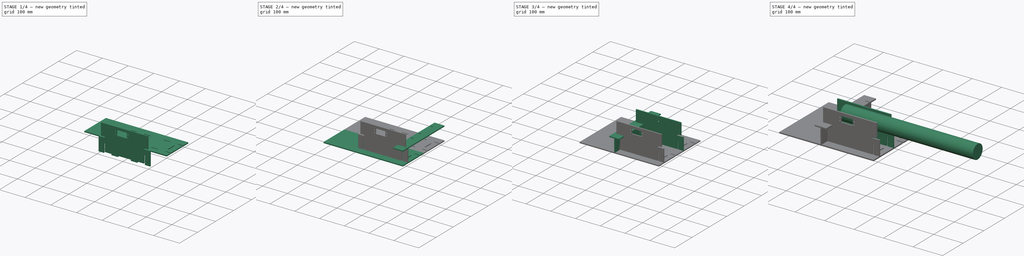
[diagram: build sequence overview — one tinted view per stage of 4, left to right]
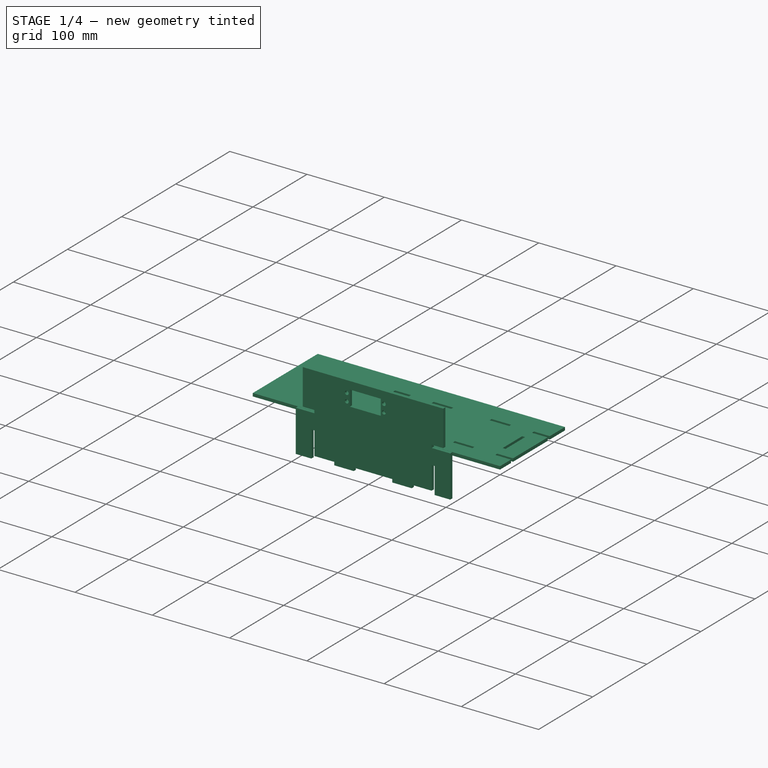
[diagram: stage 1 of 4 — iso view after this stage's code; geometry added in this stage tinted green]
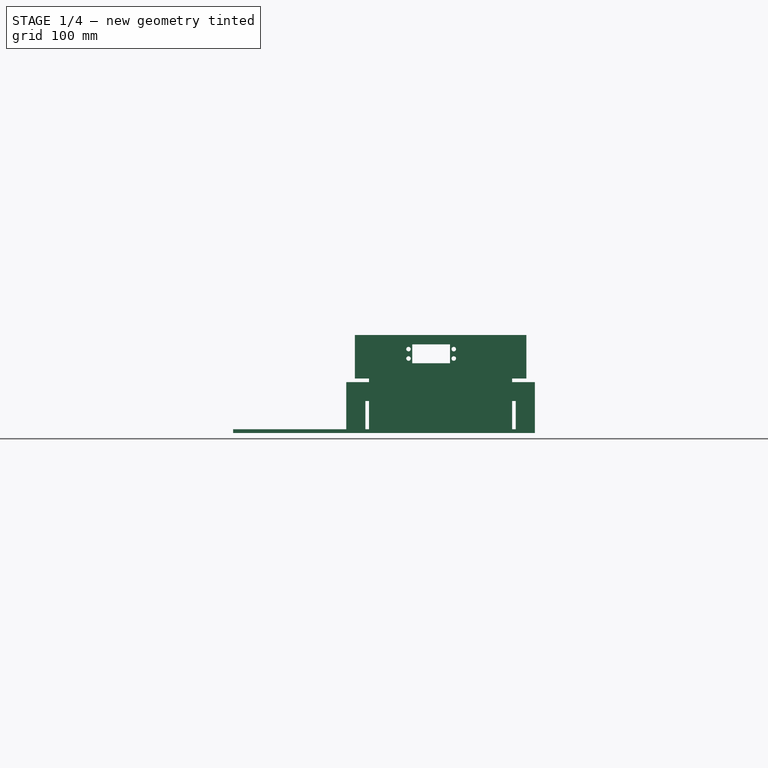
[diagram: stage 1 of 4 — front view after this stage's code; geometry added in this stage tinted green]
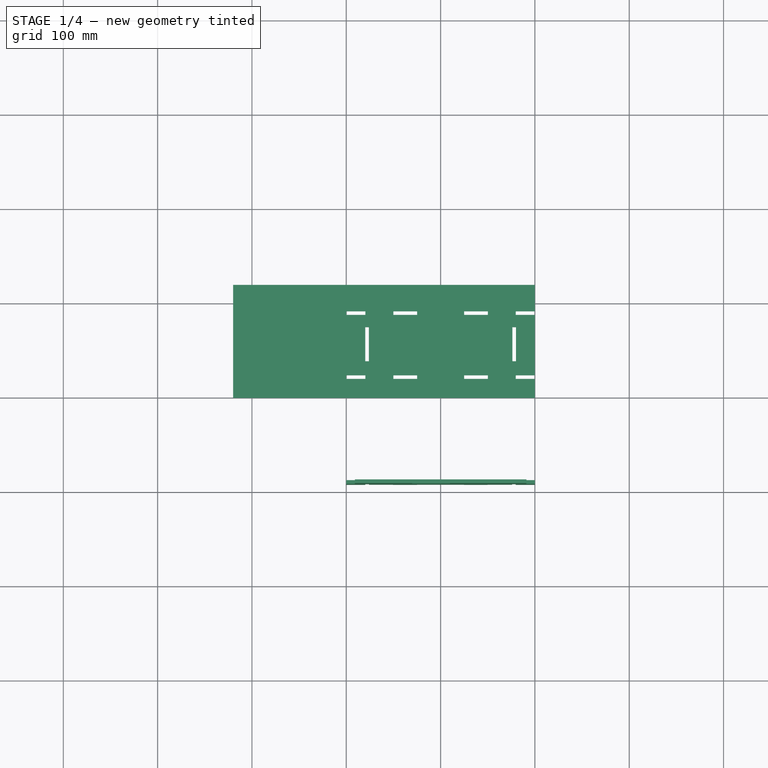
[diagram: stage 1 of 4 — top view after this stage's code; geometry added in this stage tinted green]
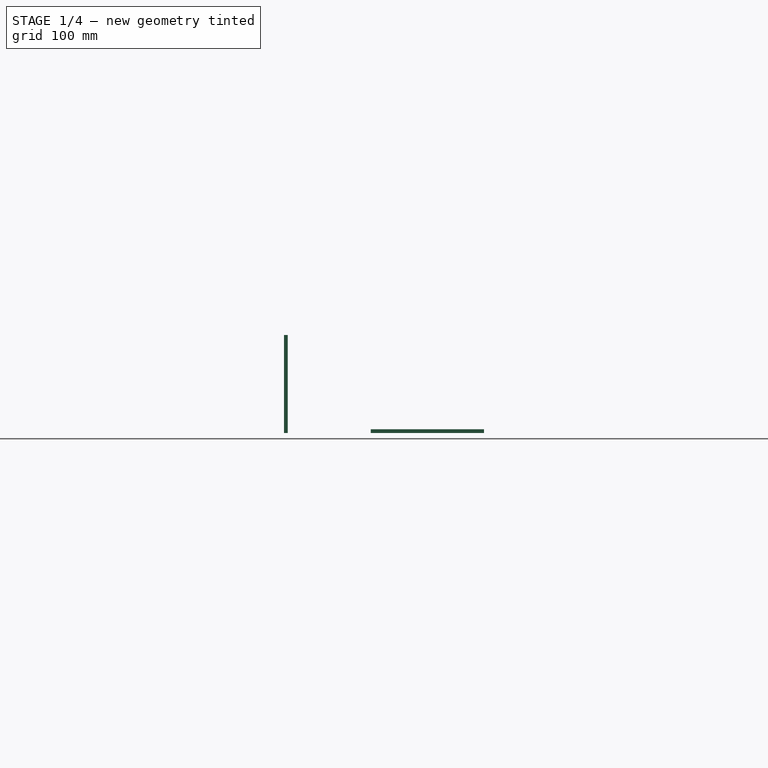
[diagram: stage 1 of 4 — right view after this stage's code; geometry added in this stage tinted green]
FCSTD DOCUMENT  (FreeCAD 0.14R3700 (Git))
Label: houdai
License: CC-BY 3.0
LicenseURL: http://creativecommons.org/licenses/by/3.0/
objects: Drawing::FeatureViewPart×8, Part::Mirroring×7, Sketcher::SketchObject×5, Part::Extrusion×5, Drawing::FeaturePage×3, Part::Cylinder×1, Part::Feature×1, Part::Fuse×1
note: 20 computed .brp shape members not serialized (recipe doc carries the construction recipe); baked Part::Feature solids carry a one-line shape summary decoded from their .brp

FEATURE [Part::Extrusion] Extrude007
  Base = -> Sketch002
  Dir = (0,0,-4)
  Solid = true
FEATURE [Sketcher::SketchObject] Sketch005  label="servomount"
  Placement = pos=(0,88,0) rot=(1,0,0;1.5708rad)
  sketch-geometry (55):
    g0: Circle [constr] CenterX=0 CenterY=0 CenterZ=0 NormalX=0 NormalY=0 NormalZ=1 Radius=2.5
    g1: LineSegment StartX=100 StartY=-30 StartZ=0 EndX=100 EndY=-80 EndZ=0
    g2: LineSegment StartX=-100 StartY=-80 StartZ=0 EndX=-100 EndY=-30 EndZ=0
    g3: LineSegment StartX=75.9 StartY=-50 StartZ=0 EndX=79.7 EndY=-50 EndZ=0
    g4: LineSegment StartX=-79.7 StartY=-50 StartZ=0 EndX=-75.9 EndY=-50 EndZ=0
    g5: LineSegment StartX=-100 StartY=-30 StartZ=0 EndX=-75.9 EndY=-30 EndZ=0
    g6: LineSegment StartX=-90.9 StartY=20 StartZ=0 EndX=90.9 EndY=20 EndZ=0
    g7: LineSegment StartX=90.9 StartY=20 StartZ=0 EndX=90.9 EndY=-26.2 EndZ=0
    g8: LineSegment StartX=75.9 StartY=-26.2 StartZ=0 EndX=90.9 EndY=-26.2 EndZ=0
    g9: LineSegment StartX=75.9 StartY=-26.2 StartZ=0 EndX=75.9 EndY=-30 EndZ=0
    g10: LineSegment StartX=75.9 StartY=-30 StartZ=0 EndX=100 EndY=-30 EndZ=0
    g11: LineSegment StartX=75.9 StartY=-50 StartZ=0 EndX=75.9 EndY=-80 EndZ=0
    g12: LineSegment StartX=-79.7 StartY=-50 StartZ=0 EndX=-79.7 EndY=-80 EndZ=0
    g13: LineSegment StartX=79.7 StartY=-50 StartZ=0 EndX=79.7 EndY=-80 EndZ=0
    g14: LineSegment [constr] StartX=75.9 StartY=-80 StartZ=0 EndX=100 EndY=-80 EndZ=0
    g15: LineSegment StartX=-75.9 StartY=-50 StartZ=0 EndX=-75.9 EndY=-80 EndZ=0
    g16: LineSegment [constr] StartX=-100 StartY=-80 StartZ=0 EndX=-75.9 EndY=-80 EndZ=0
    g17: LineSegment StartX=-90.9 StartY=-26.2 StartZ=0 EndX=-75.9 EndY=-26.2 EndZ=0
    g18: LineSegment StartX=-75.9 StartY=-26.2 StartZ=0 EndX=-75.9 EndY=-30 EndZ=0
    g19: LineSegment StartX=-90.9 StartY=20 StartZ=0 EndX=-90.9 EndY=-26.2 EndZ=0
    g20: LineSegment [constr] StartX=-75.9 StartY=-80 StartZ=0 EndX=-79.7 EndY=-80 EndZ=0
    g21: LineSegment [constr] StartX=79.7 StartY=-80 StartZ=0 EndX=75.9 EndY=-80 EndZ=0
    g22: LineSegment StartX=79.7 StartY=-80 StartZ=0 EndX=79.7 EndY=-84 EndZ=0
    g23: LineSegment StartX=79.7 StartY=-84 StartZ=0 EndX=100 EndY=-84 EndZ=0
    g24: LineSegment StartX=100 StartY=-84 StartZ=0 EndX=100 EndY=-80 EndZ=0
    g25: LineSegment StartX=-79.7 StartY=-80 StartZ=0 EndX=-79.7 EndY=-84 EndZ=0
    g26: LineSegment StartX=-79.7 StartY=-84 StartZ=0 EndX=-100 EndY=-84 EndZ=0
    g27: LineSegment StartX=-100 StartY=-84 StartZ=0 EndX=-100 EndY=-80 EndZ=0
    g28: LineSegment [constr] StartX=-50.1 StartY=-80 StartZ=0 EndX=-24.9 EndY=-80 EndZ=0
    g29: LineSegment StartX=-24.9 StartY=-80 StartZ=0 EndX=-24.9 EndY=-84 EndZ=0
    g30: LineSegment StartX=-24.9 StartY=-84 StartZ=0 EndX=-50.1 EndY=-84 EndZ=0
    g31: LineSegment StartX=-50.1 StartY=-84 StartZ=0 EndX=-50.1 EndY=-80 EndZ=0
    g32: LineSegment [constr] StartX=24.9 StartY=-80 StartZ=0 EndX=50.1 EndY=-80 EndZ=0
    g33: LineSegment StartX=50.1 StartY=-80 StartZ=0 EndX=50.1 EndY=-84 EndZ=0
    g34: LineSegment StartX=50.1 StartY=-84 StartZ=0 EndX=24.9 EndY=-84 EndZ=0
    g35: LineSegment StartX=24.9 StartY=-84 StartZ=0 EndX=24.9 EndY=-80 EndZ=0
    g36: LineSegment StartX=-75.9 StartY=-80 StartZ=0 EndX=-50.1 EndY=-80 EndZ=0
    g37: LineSegment StartX=-24.9 StartY=-80 StartZ=0 EndX=24.9 EndY=-80 EndZ=0
    g38: LineSegment StartX=50.1 StartY=-80 StartZ=0 EndX=75.9 EndY=-80 EndZ=0
    g39: LineSegment [constr] StartX=-24.9 StartY=-84 StartZ=0 EndX=24.9 EndY=-84 EndZ=0
    g40: LineSegment [constr] StartX=50.1 StartY=-84 StartZ=0 EndX=79.7 EndY=-84 EndZ=0
    g41: LineSegment [constr] StartX=-79.7 StartY=-84 StartZ=0 EndX=-50.1 EndY=-84 EndZ=0
    g42: Circle CenterX=14 CenterY=5 CenterZ=0 NormalX=0 NormalY=0 NormalZ=1 Radius=2.4
    g43: Circle CenterX=14 CenterY=-5 CenterZ=0 NormalX=0 NormalY=0 NormalZ=1 Radius=2.4
    g44: Circle CenterX=-34 CenterY=5 CenterZ=0 NormalX=0 NormalY=0 NormalZ=1 Radius=2.4
    g45: Circle CenterX=-34 CenterY=-5 CenterZ=0 NormalX=0 NormalY=0 NormalZ=1 Radius=2.4
    g46: LineSegment [constr] StartX=14 StartY=5 StartZ=0 EndX=14 EndY=-5 EndZ=0
    g47: LineSegment [constr] StartX=-34 StartY=5 StartZ=0 EndX=14 EndY=5 EndZ=0
    g48: LineSegment [constr] StartX=-34 StartY=5 StartZ=0 EndX=-34 EndY=-5 EndZ=0
    g49: LineSegment [constr] StartX=-34 StartY=-5 StartZ=0 EndX=14 EndY=-5 EndZ=0
    g50: LineSegment StartX=10 StartY=10 StartZ=0 EndX=-30 EndY=10 EndZ=0
    g51: LineSegment StartX=-30 StartY=10 StartZ=0 EndX=-30 EndY=-10 EndZ=0
    g52: LineSegment StartX=-30 StartY=-10 StartZ=0 EndX=10 EndY=-10 EndZ=0
    g53: LineSegment StartX=10 StartY=-10 StartZ=0 EndX=10 EndY=10 EndZ=0
    g54: LineSegment [constr] StartX=75.9 StartY=-30 StartZ=0 EndX=75.9 EndY=-50 EndZ=0
  constraints (145):
    c: Coincident(g0,g-1)
    c: Radius(g0) = 2.5
    c: Vertical(g1)
    c: Vertical(g2)
    c: Horizontal(g3)
    c: Distance(g3) = 3.8
    c: Horizontal(g4)
    c: Coincident(g5,g2)
    c: Horizontal(g5)
    c: DistanceY(g-1,g6) = 20
    c: Horizontal(g6)
    c: Coincident(g7,g6)
    c: Vertical(g7)
    c: Horizontal(g8)
    c: Coincident(g8,g7)
    c: Coincident(g9,g8)
    c: Coincident(g10,g9)
    c: Horizontal(g10)
    c: Vertical(g9)
    c: Distance(g9) = 3.8
    c: Distance(g8) = 15
    c: Distance(g1,g6) = 100
    c: Vertical(g11)
    c: Vertical(g12)
    c: Coincident(g13,g3)
    c: Vertical(g13)
    c: Coincident(g14,g1)
    c: Horizontal(g14)
    c: Coincident(g15,g4)
    c: Vertical(g15)
    c: Coincident(g16,g2)
    c: Coincident(g16,g15)
    c: Horizontal(g16)
    c: Coincident(g10,g1)
    c: Coincident(g3,g11)
    c: Coincident(g17,g18)
    c: Horizontal(g17)
    c: Vertical(g18)
    c: Coincident(g19,g6)
    c: Coincident(g19,g17)
    c: Vertical(g19)
    c: Coincident(g5,g18)
    c: Coincident(g12,g4)
    c: Coincident(g20,g15)
    c: Coincident(g20,g12)
    c: Horizontal(g20)
    c: Horizontal(g21)
    c: Coincident(g21,g13)
    c: Coincident(g11,g21)
    c: Coincident(g14,g11)
    c: Symmetric(g6,g6,g-2)
    c: Symmetric(g17,g8,g-2)
    c: Symmetric(g2,g1,g-2)
    c: Symmetric(g4,g3,g-2)
    c: Symmetric(g12,g13,g-2)
    c: Vertical(g22)
    c: Coincident(g13,g22)
    c: Coincident(g23,g22)
    c: Horizontal(g23)
    c: Coincident(g24,g23)
    c: Coincident(g24,g1)
    c: Vertical(g24)
    c: Distance(g24) = 4
    c: Coincident(g25,g26)
    c: Coincident(g26,g27)
    c: Horizontal(g26)
    c: Vertical(g25)
    c: Vertical(g27)
    c: Coincident(g27,g2)
    c: Coincident(g25,g12)
    c: Symmetric(g22,g25,g-2)
    c: Coincident(g28,g29)
    c: Coincident(g29,g30)
    c: Coincident(g30,g31)
    c: Coincident(g31,g28)
    c: Horizontal(g28)
    c: Horizontal(g30)
    c: Vertical(g29)
    c: Vertical(g31)
    c: Coincident(g32,g33)
    c: Coincident(g33,g34)
    c: Coincident(g34,g35)
    c: Coincident(g35,g32)
    c: Horizontal(g32)
    c: Horizontal(g34)
    c: Vertical(g33)
    c: Vertical(g35)
    c: Coincident(g36,g28)
    c: Horizontal(g36)
    c: Coincident(g37,g28)
    c: Coincident(g37,g32)
    c: Coincident(g38,g32)
    c: Coincident(g38,g11)
    c: Horizontal(g38)
    c: Symmetric(g28,g32,g-2)
    c: Symmetric(g33,g30,g-2)
    c: Distance(g34) = 25.2
    c: Coincident(g15,g36)
    c: Coincident(g39,g29)
    c: Coincident(g39,g34)
    c: Coincident(g40,g33)
    c: Coincident(g40,g22)
    c: Horizontal(g40)
    c: DistanceX(g-2,g6) = 90.9
    c: DistanceX(g-2,g34) = 24.9
    c: Distance(g23) = 20.3
    c: Distance(g11) = 30
    c: Coincident(g41,g25)
    c: Coincident(g41,g30)
    c: Radius(g42) = 2.4
    c: Radius(g43) = 2.4
    c: Coincident(g46,g42)
    c: Coincident(g46,g43)
    c: Vertical(g46)
    c: Radius(g45) = 2.4
    c: Radius(g44) = 2.4
    c: Coincident(g47,g44)
    c: Horizontal(g47)
    c: Coincident(g48,g44)
    c: Coincident(g48,g45)
    c: Vertical(g48)
    c: Coincident(g49,g45)
    c: Coincident(g49,g43)
    c: Horizontal(g49)
    c: Distance(g48) = 10
    c: Coincident(g47,g42)
    c: Symmetric(g43,g42,g-1)
    c: Distance(g-1,g46) = 14
    c: Distance(g47) = 48
    c: Coincident(g50,g51)
    c: Coincident(g51,g52)
    c: Coincident(g52,g53)
    c: Coincident(g53,g50)
    c: Horizontal(g50)
    c: Horizontal(g52)
    c: Vertical(g51)
    c: Vertical(g53)
    c: Distance(g53) = 20
    c: Symmetric(g52,g50,g-1)
    c: DistanceX(g50,g42) = 4
    c: Distance(g50) = 40
    c: Coincident(g54,g9)
    c: Coincident(g54,g3)
    c: Vertical(g54)
    c: DistanceY(g-1,g9) = -30
FEATURE [Part::Extrusion] Extrude
  Base = -> Sketch005
  Dir = (0,4,0)
  Solid = true
FEATURE [Part::Mirroring] Part__Mirroring009  label="Extrude (Mirror #7)"
  Base = (0,0,0)
  Normal = (0,1,0)
  Source = -> Extrude
FEATURE [Drawing::FeatureViewPart] Ortho  label="Ortho_0_0"
  Direction = (1,0,0)
  HiddenWidth = 0.15
  LineWidth = 0.01
  Rotation = 0
  ShowHiddenLines = false
  ShowSmoothLines = false
  Source = -> Extrude005
  Tolerance = 0.05
  ViewResult = <g id="Ortho_0_0"\n   transform="rotate(0,100,140) translate(100,140) scale(1,1)"\n  >\n<g   stroke="rgb(0, 0, 0)"\n   stroke-width="0.01"\n   stroke-linecap="butt"\n   stroke-linejoin="miter"\n   fill="none"\n   transform="scale(1,-1)"\n  >\n<path id= "1" d=" M -80 99.9 L -84 99.9 " />\n<path id= "2" d=" M -84 99.9 L -84 120 " />\n<path id= "3" d=" M -84 120 L -80 120 " />\n<path id= "4" d=" M -80 120 L -30 120 " />\n<path id= "5" d=" M -30 120 L -30 91.9 " />\n<path id= "6" d=" M -30 91.9 L -50 91.9 " />\n<path id= "7" d=" M -50 91.9 L -50 88.1 " />\n<path id= "8" d=" M -50 88.1 L -30 88.1 " />\n<path id= "9" d=" M -30 88.1 L -30 23.9 " />\n<path id= "10" d=" M -30 23.9 L -50 23.9 " />\n<path id= "11" d=" M -50 23.9 L -50 20.1 " />\n<path id= "12" d=" M -50 20.1 L -30 20.1 " />\n<path id= "13" d=" M -30 -20.1 L -30 20.1 " />\n<path id= "14" d=" M -50 -20.1 L -30 -20.1 " />\n<path id= "15" d=" M -50 -23.9 L -50 -20.1 " />\n<path id= "16" d=" M -30 -23.9 L -50 -23.9 " />\n<path id= "17" d=" M -30 -88.1 L -30 -23.9 " />\n<path id= "18" d=" M -50 -88.1 L -30 -88.1 " />\n<path id= "19" d=" M -50 -91.9 L -50 -88.1 " />\n<path id= "20" d=" M -30 -91.9 L -50 -91.9 " />\n<path id= "21" d=" M -30 -120 L -30 -91.9 " />\n<path id= "22" d=" M -30 -120 L -80 -120 " />\n<path id= "23" d=" M -80 -120 L -84 -120 " />\n<path id= "24" d=" M -84 -120 L -84 -99.9 " />\n<path id= "25" d=" M -84 -99.9 L -80 -99.9 " />\n<path id= "26" d=" M -80 -75.1 L -80 -99.9 " />\n<path id= "27" d=" M -80 -75.1 L -84 -75.1 " />\n<path id= "28" d=" M -84 -75.1 L -84 -38.9 " />\n<path id= "29" d=" M -84 -38.9 L -80 -38.9 " />\n<path id= "30" d=" M -80 38.9 L -80 -38.9 " />\n<path id= "31" d=" M -80 38.9 L -84 38.9 " />\n<path id= "32" d=" M -84 38.9 L -84 75.1 " />\n<path id= "33" d=" M -84 75.1 L -80 75.1 " />\n<path id= "34" d=" M -80 99.9 L -80 75.1 " />\n</g>\n</g>
  X = 100
  Y = 140
FEATURE [Drawing::FeatureViewPart] Ortho001  label="Ortho_0_001"
  Direction = (-1,0,0)
  HiddenWidth = 0.15
  LineWidth = 0.01
  Rotation = 0
  ShowHiddenLines = false
  ShowSmoothLines = false
  Source = -> Part__Mirroring004
  Tolerance = 0.05
  ViewResult = <g id="Ortho_0_001"\n   transform="rotate(0,50,140) translate(50,140) scale(1,1)"\n  >\n<g   stroke="rgb(0, 0, 0)"\n   stroke-width="0.01"\n   stroke-linecap="butt"\n   stroke-linejoin="miter"\n   fill="none"\n   transform="scale(1,-1)"\n  >\n<path id= "1" d=" M 80 99.9 L 84 99.9 " />\n<path id= "2" d=" M 84 99.9 L 84 120 " />\n<path id= "3" d=" M 84 120 L 80 120 " />\n<path id= "4" d=" M 80 120 L 30 120 " />\n<path id= "5" d=" M 30 120 L 30 91.9 " />\n<path id= "6" d=" M 30 91.9 L 50 91.9 " />\n<path id= "7" d=" M 50 91.9 L 50 88.1 " />\n<path id= "8" d=" M 50 88.1 L 30 88.1 " />\n<path id= "9" d=" M 30 88.1 L 30 23.9 " />\n<path id= "10" d=" M 30 23.9 L 50 23.9 " />\n<path id= "11" d=" M 50 23.9 L 50 20.1 " />\n<path id= "12" d=" M 50 20.1 L 30 20.1 " />\n<path id= "13" d=" M 30 -20.1 L 30 20.1 " />\n<path id= "14" d=" M 50 -20.1 L 30 -20.1 " />\n<path id= "15" d=" M 50 -23.9 L 50 -20.1 " />\n<path id= "16" d=" M 30 -23.9 L 50 -23.9 " />\n<path id= "17" d=" M 30 -88.1 L 30 -23.9 " />\n<path id= "18" d=" M 50 -88.1 L 30 -88.1 " />\n<path id= "19" d=" M 50 -91.9 L 50 -88.1 " />\n<path id= "20" d=" M 30 -91.9 L 50 -91.9 " />\n<path id= "21" d=" M 30 -120 L 30 -91.9 " />\n<path id= "22" d=" M 30 -120 L 80 -120 " />\n<path id= "23" d=" M 80 -120 L 84 -120 " />\n<path id= "24" d=" M 84 -120 L 84 -99.9 " />\n<path id= "25" d=" M 84 -99.9 L 80 -99.9 " />\n<path id= "26" d=" M 80 -75.1 L 80 -99.9 " />\n<path id= "27" d=" M 80 -75.1 L 84 -75.1 " />\n<path id= "28" d=" M 84 -75.1 L 84 -38.9 " />\n<path id= "29" d=" M 84 -38.9 L 80 -38.9 " />\n<path id= "30" d=" M 80 38.9 L 80 -38.9 " />\n<path id= "31" d=" M 80 38.9 L 84 38.9 " />\n<path id= "32" d=" M 84 38.9 L 84 75.1 " />\n<path id= "33" d=" M 84 75.1 L 80 75.1 " />\n<path id= "34" d=" M 80 99.9 L 80 75.1 " />\n</g>\n</g>
  X = 50
  Y = 140
FEATURE [Drawing::FeatureViewPart] Ortho002  label="Ortho_0_002"
  Direction = (0,1,0)
  HiddenWidth = 0.15
  LineWidth = 0.01
  Rotation = 0
  ShowHiddenLines = false
  ShowSmoothLines = false
  Source = -> Extrude
  Tolerance = 0.05
  ViewResult = <blob: 2060 chars omitted>
  X = 240
  Y = 118.5
FEATURE [Drawing::FeatureViewPart] Ortho003  label="Ortho_0_003"
  Direction = (0,-1,0)
  HiddenWidth = 0.15
  LineWidth = 0.01
  Rotation = 0
  ShowHiddenLines = false
  ShowSmoothLines = false
  Source = -> Part__Mirroring009
  Tolerance = 0.05
  ViewResult = <g id="Ortho_0_003"\n   transform="rotate(0,312,120) translate(312,120) scale(1,1)"\n  >\n<g   stroke="rgb(0, 0, 0)"\n   stroke-width="0.01"\n   stroke-linecap="butt"\n   stroke-linejoin="miter"\n   fill="none"\n   transform="scale(1,-1)"\n  >\n<path id= "1" d=" M 26.2 75.9 L 30 75.9 " />\n<path id= "2" d=" M 30 75.9 L 30 100 " />\n<path id= "3" d=" M 30 100 L 80 100 " />\n<path id= "4" d=" M 84 100 L 80 100 " />\n<path id= "5" d=" M 84 79.7 L 84 100 " />\n<path id= "6" d=" M 80 79.7 L 84 79.7 " />\n<path id= "7" d=" M 50 79.7 L 80 79.7 " />\n<path id= "8" d=" M 50 75.9 L 50 79.7 " />\n<path id= "9" d=" M 50 75.9 L 80 75.9 " />\n<path id= "10" d=" M 80 50.1 L 80 75.9 " />\n<path id= "11" d=" M 80 50.1 L 84 50.1 " />\n<path id= "12" d=" M 84 50.1 L 84 24.9 " />\n<path id= "13" d=" M 84 24.9 L 80 24.9 " />\n<path id= "14" d=" M 80 -24.9 L 80 24.9 " />\n<path id= "15" d=" M 80 -24.9 L 84 -24.9 " />\n<path id= "16" d=" M 84 -24.9 L 84 -50.1 " />\n<path id= "17" d=" M 84 -50.1 L 80 -50.1 " />\n<path id= "18" d=" M 80 -75.9 L 80 -50.1 " />\n<path id= "19" d=" M 50 -75.9 L 80 -75.9 " />\n<path id= "20" d=" M 50 -79.7 L 50 -75.9 " />\n<path id= "21" d=" M 50 -79.7 L 80 -79.7 " />\n<path id= "22" d=" M 80 -79.7 L 84 -79.7 " />\n<path id= "23" d=" M 84 -79.7 L 84 -100 " />\n<path id= "24" d=" M 84 -100 L 80 -100 " />\n<path id= "25" d=" M 80 -100 L 30 -100 " />\n<path id= "26" d=" M 30 -100 L 30 -75.9 " />\n<path id= "27" d=" M 26.2 -75.9 L 30 -75.9 " />\n<path id= "28" d=" M 26.2 -90.9 L 26.2 -75.9 " />\n<path id= "29" d=" M -20 -90.9 L 26.2 -90.9 " />\n<path id= "30" d=" M -20 -90.9 L -20 90.9 " />\n<path id= "31" d=" M -20 90.9 L 26.2 90.9 " />\n<path id= "32" d=" M 26.2 75.9 L 26.2 90.9 " />\n<path id= "33" d=" M -10 10 L -10 -30 " />\n<path id= "34" d=" M -10 -30 L 10 -30 " />\n<path id= "35" d=" M 10 -30 L 10 10 " />\n<path id= "36" d=" M 10 10 L -10 10 " />\n<circle cx ="5" cy ="-34" r ="2.4" /><circle cx ="-5" cy ="-34" r ="2.4" /><circle cx ="5" cy ="14" r ="2.4" /><circle cx ="-5" cy ="14" r ="2.4" /></g>\n</g>
  X = 312
  Y = 120
FEATURE [Drawing::FeaturePage] Page
  EditableTexts = AUTHOR NAME | CREATION DATE | SUPERVISOR NAME | CHECK DATE | SCALE | WEIGHT | NUMBER | SHEET | TITLE | SUBTITLE
  Group = -> [Ortho,Ortho001,Ortho002,Ortho003]
  Template = C:/Program Files (x86)/FreeCAD 0.14/data/Mod/Drawing/Templates/A3_Landscape.svg
FEATURE [Drawing::FeatureViewPart] Ortho004  label="Ortho_0_004"
  Direction = (0,1,0)
  HiddenWidth = 0.15
  LineWidth = 0.01
  Rotation = 0
  ShowHiddenLines = false
  ShowSmoothLines = false
  Source = -> Extrude004
  Tolerance = 0.05
  ViewResult = <g id="Ortho_0_004"\n   transform="rotate(0,270,120) translate(270,120) scale(1,1)"\n  >\n<g   stroke="rgb(0, 0, 0)"\n   stroke-width="0.01"\n   stroke-linecap="butt"\n   stroke-linejoin="miter"\n   fill="none"\n   transform="scale(1,-1)"\n  >\n<path id= "1" d=" M -26.3 75.9 L -30.1 75.9 " />\n<path id= "2" d=" M -30.1 75.9 L -30.1 100 " />\n<path id= "3" d=" M -30.1 100 L -80 100 " />\n<path id= "4" d=" M -84 100 L -80 100 " />\n<path id= "5" d=" M -84 79.7 L -84 100 " />\n<path id= "6" d=" M -80 79.7 L -84 79.7 " />\n<path id= "7" d=" M -50 79.7 L -80 79.7 " />\n<path id= "8" d=" M -50 75.9 L -50 79.7 " />\n<path id= "9" d=" M -50 75.9 L -80 75.9 " />\n<path id= "10" d=" M -80 50.1 L -80 75.9 " />\n<path id= "11" d=" M -80 50.1 L -84 50.1 " />\n<path id= "12" d=" M -84 50.1 L -84 24.9 " />\n<path id= "13" d=" M -84 24.9 L -80 24.9 " />\n<path id= "14" d=" M -80 -24.9 L -80 24.9 " />\n<path id= "15" d=" M -80 -24.9 L -84 -24.9 " />\n<path id= "16" d=" M -84 -24.9 L -84 -50.1 " />\n<path id= "17" d=" M -84 -50.1 L -80 -50.1 " />\n<path id= "18" d=" M -80 -75.9 L -80 -50.1 " />\n<path id= "19" d=" M -50 -75.9 L -80 -75.9 " />\n<path id= "20" d=" M -50 -79.7 L -50 -75.9 " />\n<path id= "21" d=" M -50 -79.7 L -80 -79.7 " />\n<path id= "22" d=" M -80 -79.7 L -84 -79.7 " />\n<path id= "23" d=" M -84 -79.7 L -84 -100 " />\n<path id= "24" d=" M -84 -100 L -80 -100 " />\n<path id= "25" d=" M -80 -100 L -30.1 -100 " />\n<path id= "26" d=" M -30.1 -100 L -30.1 -75.9 " />\n<path id= "27" d=" M -26.3 -75.9 L -30.1 -75.9 " />\n<path id= "28" d=" M -26.3 -90.9 L -26.3 -75.9 " />\n<path id= "29" d=" M 20 -90.9 L -26.3 -90.9 " />\n<path id= "30" d=" M 20 -90.9 L 20 90.9 " />\n<path id= "31" d=" M 20 90.9 L -26.3 90.9 " />\n<path id= "32" d=" M -26.3 75.9 L -26.3 90.9 " />\n<circle cx ="0" cy ="0" r ="2.5" /></g>\n</g>
  X = 270
  Y = 120
FEATURE [Drawing::FeatureViewPart] Ortho005  label="Ortho_0_005"
  Direction = (0,-1,0)
  HiddenWidth = 0.15
  LineWidth = 0.01
  Rotation = 0
  ShowHiddenLines = false
  ShowSmoothLines = false
  Source = -> Part__Mirroring003
  Tolerance = 0.05
  ViewResult = <g id="Ortho_0_005"\n   transform="rotate(0,320,120) translate(320,120) scale(1,1)"\n  >\n<g   stroke="rgb(0, 0, 0)"\n   stroke-width="0.01"\n   stroke-linecap="butt"\n   stroke-linejoin="miter"\n   fill="none"\n   transform="scale(1,-1)"\n  >\n<path id= "1" d=" M 26.3 75.9 L 30.1 75.9 " />\n<path id= "2" d=" M 30.1 75.9 L 30.1 100 " />\n<path id= "3" d=" M 30.1 100 L 80 100 " />\n<path id= "4" d=" M 84 100 L 80 100 " />\n<path id= "5" d=" M 84 79.7 L 84 100 " />\n<path id= "6" d=" M 80 79.7 L 84 79.7 " />\n<path id= "7" d=" M 50 79.7 L 80 79.7 " />\n<path id= "8" d=" M 50 75.9 L 50 79.7 " />\n<path id= "9" d=" M 50 75.9 L 80 75.9 " />\n<path id= "10" d=" M 80 50.1 L 80 75.9 " />\n<path id= "11" d=" M 80 50.1 L 84 50.1 " />\n<path id= "12" d=" M 84 50.1 L 84 24.9 " />\n<path id= "13" d=" M 84 24.9 L 80 24.9 " />\n<path id= "14" d=" M 80 -24.9 L 80 24.9 " />\n<path id= "15" d=" M 80 -24.9 L 84 -24.9 " />\n<path id= "16" d=" M 84 -24.9 L 84 -50.1 " />\n<path id= "17" d=" M 84 -50.1 L 80 -50.1 " />\n<path id= "18" d=" M 80 -75.9 L 80 -50.1 " />\n<path id= "19" d=" M 50 -75.9 L 80 -75.9 " />\n<path id= "20" d=" M 50 -79.7 L 50 -75.9 " />\n<path id= "21" d=" M 50 -79.7 L 80 -79.7 " />\n<path id= "22" d=" M 80 -79.7 L 84 -79.7 " />\n<path id= "23" d=" M 84 -79.7 L 84 -100 " />\n<path id= "24" d=" M 84 -100 L 80 -100 " />\n<path id= "25" d=" M 80 -100 L 30.1 -100 " />\n<path id= "26" d=" M 30.1 -100 L 30.1 -75.9 " />\n<path id= "27" d=" M 26.3 -75.9 L 30.1 -75.9 " />\n<path id= "28" d=" M 26.3 -90.9 L 26.3 -75.9 " />\n<path id= "29" d=" M -20 -90.9 L 26.3 -90.9 " />\n<path id= "30" d=" M -20 -90.9 L -20 90.9 " />\n<path id= "31" d=" M -20 90.9 L 26.3 90.9 " />\n<path id= "32" d=" M 26.3 75.9 L 26.3 90.9 " />\n<circle cx ="0" cy ="0" r ="2.5" /></g>\n</g>
  X = 320
  Y = 120
FEATURE [Drawing::FeatureViewPart] Ortho009  label="Ortho_0_009"
  Direction = (0,0,1)
  HiddenWidth = 0.15
  LineWidth = 0.01
  Rotation = 0
  ShowHiddenLines = false
  ShowSmoothLines = false
  Source = -> Extrude006
  Tolerance = 0.05
  ViewResult = <g id="Ortho_0_009"\n   transform="rotate(0,-30,140) translate(-30,140) scale(1,1)"\n  >\n<g   stroke="rgb(0, 0, 0)"\n   stroke-width="0.01"\n   stroke-linecap="butt"\n   stroke-linejoin="miter"\n   fill="none"\n   transform="scale(1,-1)"\n  >\n<path id= "1" d=" M 60 120 L 60 91.8 " />\n<path id= "2" d=" M 60 120 L 100 120 " />\n<path id= "3" d=" M 100 120 L 100 -120 " />\n<path id= "4" d=" M 100 -120 L 60 -120 " />\n<path id= "5" d=" M 60 -91.8 L 60 -120 " />\n<path id= "6" d=" M 75 -91.8 L 60 -91.8 " />\n<path id= "7" d=" M 75 -88 L 75 -91.8 " />\n<path id= "8" d=" M 60 -88 L 75 -88 " />\n<path id= "9" d=" M 60 -88 L 60 -23.9 " />\n<path id= "10" d=" M 75 -23.9 L 60 -23.9 " />\n<path id= "11" d=" M 75 -20.1 L 75 -23.9 " />\n<path id= "12" d=" M 60 -20.1 L 75 -20.1 " />\n<path id= "13" d=" M 60 20.1 L 60 -20.1 " />\n<path id= "14" d=" M 75 20.1 L 60 20.1 " />\n<path id= "15" d=" M 75 23.9 L 75 20.1 " />\n<path id= "16" d=" M 60 23.9 L 75 23.9 " />\n<path id= "17" d=" M 60 88 L 60 23.9 " />\n<path id= "18" d=" M 75 88 L 60 88 " />\n<path id= "19" d=" M 75 91.8 L 75 88 " />\n<path id= "20" d=" M 60 91.8 L 75 91.8 " />\n</g>\n</g>
  X = -30
  Y = 140
FEATURE [Drawing::FeaturePage] Page002
  EditableTexts = AUTHOR NAME | CREATION DATE | SUPERVISOR NAME | CHECK DATE | SCALE | WEIGHT | NUMBER | SHEET | TITLE | SUBTITLE
  Group = -> [Ortho004,Ortho005,Ortho009]
  Template = C:/Program Files (x86)/FreeCAD 0.14/data/Mod/Drawing/Templates/A3_Landscape.svg
FEATURE [Drawing::FeatureViewPart] Ortho010  label="Ortho_0_010"
  Direction = (0,0,1)
  HiddenWidth = 0.15
  LineWidth = 0.01
  Rotation = 180
  ShowHiddenLines = false
  ShowSmoothLines = false
  Source = -> Fusion
  Tolerance = 0.05
  ViewResult = <blob: 5516 chars omitted>
  X = 120
  Y = 140
FEATURE [Drawing::FeaturePage] Page003
  EditableTexts = AUTHOR NAME | CREATION DATE | SUPERVISOR NAME | CHECK DATE | SCALE | WEIGHT | NUMBER | SHEET | TITLE | SUBTITLE
  Group = -> [Ortho010]
  Template = C:/Program Files (x86)/FreeCAD 0.14/data/Mod/Drawing/Templates/A3_Landscape.svg
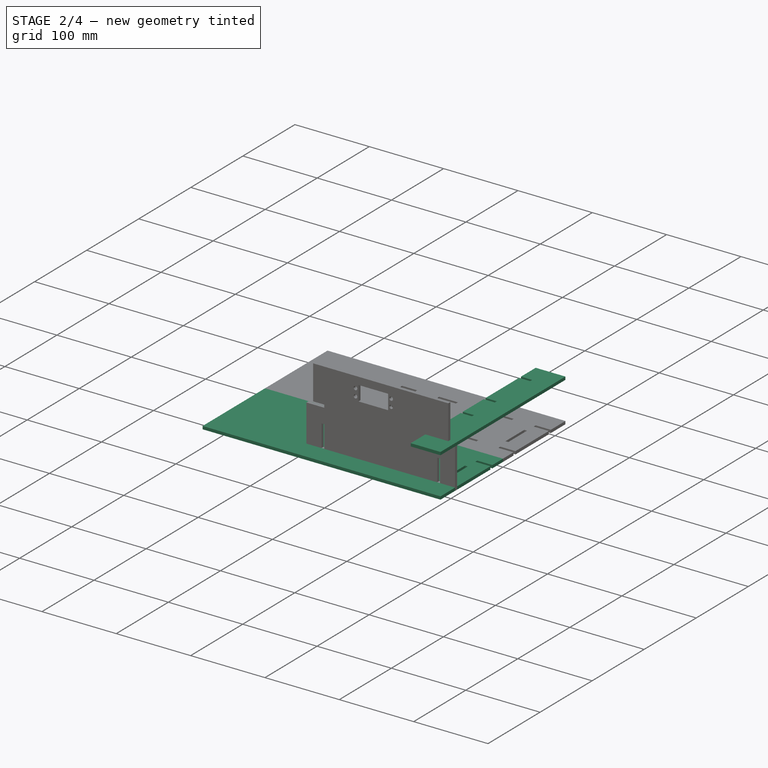
[diagram: stage 2 of 4 — iso view after this stage's code; geometry added in this stage tinted green]
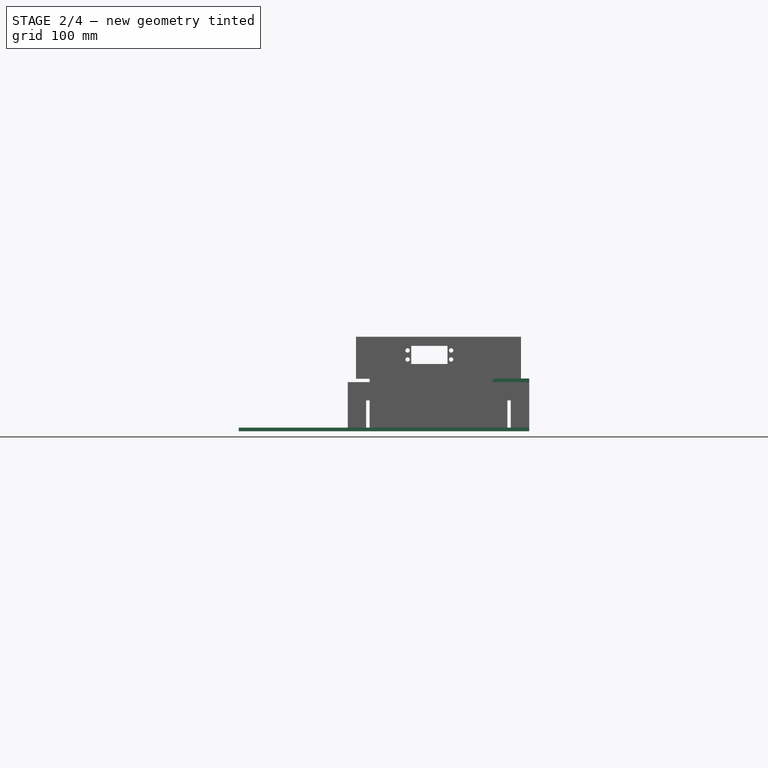
[diagram: stage 2 of 4 — front view after this stage's code; geometry added in this stage tinted green]
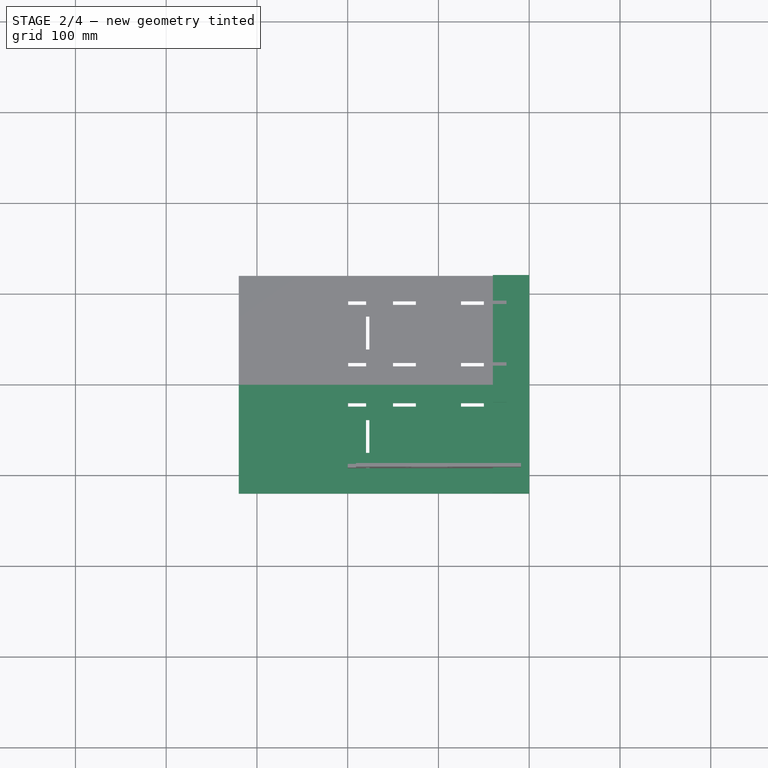
[diagram: stage 2 of 4 — top view after this stage's code; geometry added in this stage tinted green]
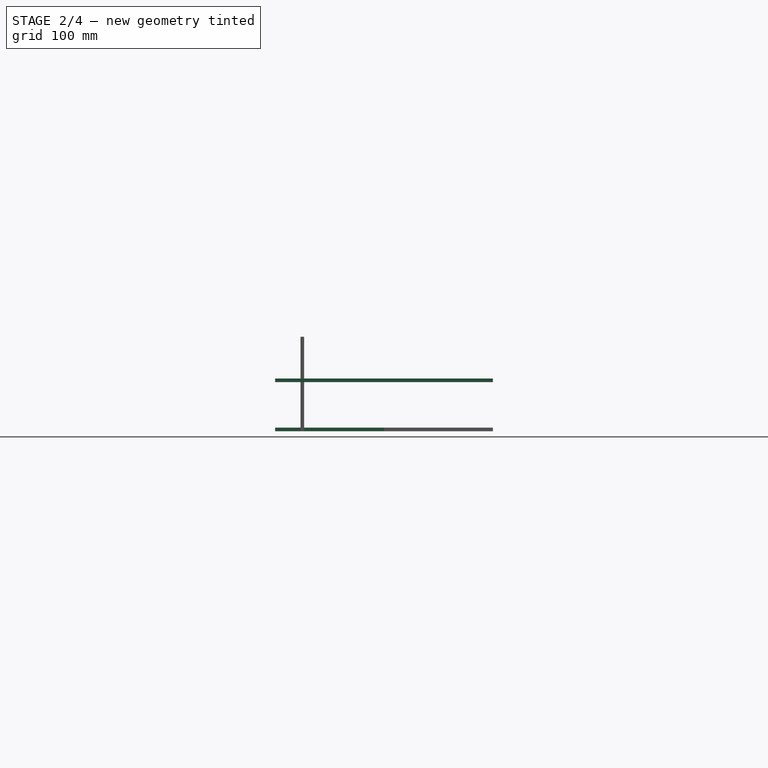
[diagram: stage 2 of 4 — right view after this stage's code; geometry added in this stage tinted green]
FEATURE [Sketcher::SketchObject] Sketch  label="horz_stopper"
  Placement = pos=(0,0,-30) rot=(0,0,1;0rad)
  sketch-geometry (25):
    g0: LineSegment StartX=60 StartY=120 StartZ=0 EndX=100 EndY=120 EndZ=0
    g1: LineSegment StartX=100 StartY=120 StartZ=0 EndX=100 EndY=-120 EndZ=0
    g2: LineSegment StartX=100 StartY=-120 StartZ=0 EndX=60 EndY=-120 EndZ=0
    g3: LineSegment StartX=60 StartY=23.9 StartZ=0 EndX=75 EndY=23.9 EndZ=0
    g4: LineSegment StartX=75 StartY=23.9 StartZ=0 EndX=75 EndY=20.1 EndZ=0
    g5: LineSegment StartX=75 StartY=20.1 StartZ=0 EndX=60 EndY=20.1 EndZ=0
    g6: LineSegment [constr] StartX=60 StartY=20.1 StartZ=0 EndX=60 EndY=23.9 EndZ=0
    g7: LineSegment StartX=60 StartY=20.1 StartZ=0 EndX=60 EndY=-20.1 EndZ=0
    g8: LineSegment StartX=60 StartY=-20.1 StartZ=0 EndX=75 EndY=-20.1 EndZ=0
    g9: LineSegment StartX=75 StartY=-20.1 StartZ=0 EndX=75 EndY=-23.9 EndZ=0
    g10: LineSegment StartX=75 StartY=-23.9 StartZ=0 EndX=60 EndY=-23.9 EndZ=0
    g11: LineSegment [constr] StartX=60 StartY=-23.9 StartZ=0 EndX=60 EndY=-20.1 EndZ=0
    g12: LineSegment StartX=60 StartY=91.8 StartZ=0 EndX=75 EndY=91.8 EndZ=0
    g13: LineSegment StartX=75 StartY=91.8 StartZ=0 EndX=75 EndY=88 EndZ=0
    g14: LineSegment StartX=75 StartY=88 StartZ=0 EndX=60 EndY=88 EndZ=0
    g15: LineSegment [constr] StartX=60 StartY=88 StartZ=0 EndX=60 EndY=91.8 EndZ=0
    g16: LineSegment StartX=60 StartY=120 StartZ=0 EndX=60 EndY=91.8 EndZ=0
    g17: LineSegment StartX=60 StartY=88 StartZ=0 EndX=60 EndY=23.9 EndZ=0
    g18: LineSegment StartX=60 StartY=-88 StartZ=0 EndX=75 EndY=-88 EndZ=0
    g19: LineSegment StartX=75 StartY=-88 StartZ=0 EndX=75 EndY=-91.8 EndZ=0
    g20: LineSegment StartX=75 StartY=-91.8 StartZ=0 EndX=60 EndY=-91.8 EndZ=0
    g21: LineSegment [constr] StartX=60 StartY=-91.8 StartZ=0 EndX=60 EndY=-88 EndZ=0
    g22: LineSegment StartX=60 StartY=-88 StartZ=0 EndX=60 EndY=-23.9 EndZ=0
    g23: LineSegment StartX=60 StartY=-91.8 StartZ=0 EndX=60 EndY=-120 EndZ=0
    g24: LineSegment [constr] StartX=75 StartY=23.9 StartZ=0 EndX=75 EndY=88 EndZ=0
  constraints (67):
    c: Coincident(g0,g1)
    c: Coincident(g1,g2)
    c: Horizontal(g0)
    c: Horizontal(g2)
    c: Vertical(g1)
    c: Symmetric(g1,g0,g-1)
    c: Coincident(g3,g4)
    c: Coincident(g4,g5)
    c: Coincident(g5,g6)
    c: Coincident(g6,g3)
    c: Horizontal(g3)
    c: Horizontal(g5)
    c: Vertical(g4)
    c: Vertical(g6)
    c: Distance(g4) = 3.8
    c: Coincident(g7,g5)
    c: DistanceY(g-1,g5) = 20.1
    c: Coincident(g8,g9)
    c: Coincident(g9,g10)
    c: Coincident(g10,g11)
    c: Coincident(g11,g8)
    c: Horizontal(g8)
    c: Horizontal(g10)
    c: Vertical(g9)
    c: Vertical(g11)
    c: Coincident(g8,g7)
    c: Symmetric(g5,g7,g-1)
    c: Symmetric(g9,g3,g-1)
    c: Distance(g3) = 15
    c: Distance(g2) = 40
    c: Distance(g1) = 240
    c: Coincident(g12,g13)
    c: Coincident(g13,g14)
    c: Coincident(g14,g15)
    c: Coincident(g15,g12)
    c: Horizontal(g12)
    c: Horizontal(g14)
    c: Vertical(g13)
    c: Vertical(g15)
    c: Coincident(g16,g0)
    c: Coincident(g16,g12)
    c: Vertical(g16)
    c: Coincident(g17,g14)
    c: Coincident(g17,g3)
    c: Vertical(g17)
    c: Distance(g13) = 3.8
    c: Distance(g17) = 64.1
    c: Coincident(g18,g19)
    c: Coincident(g19,g20)
    c: Coincident(g20,g21)
    c: Coincident(g21,g18)
    c: Horizontal(g18)
    c: Horizontal(g20)
    c: Vertical(g19)
    c: Vertical(g21)
    c: Coincident(g22,g18)
    c: Coincident(g22,g10)
    c: Coincident(g23,g20)
    c: Coincident(g23,g2)
    c: Symmetric(g20,g12,g-1)
    c: Symmetric(g18,g14,g-1)
    c: Coincident(g24,g3)
    c: Coincident(g24,g13)
    c: Vertical(g24)
    c: Vertical(g23)
    c: Symmetric(g13,g18,g-1)
    c: Distance(g-1,g1) = 100
FEATURE [Part::Extrusion] Extrude006
  Base = -> Sketch
  Dir = (0,0,4)
  Solid = true
FEATURE [Part::Mirroring] Part__Mirroring008  label="Extrude007 (Mirror #8)"
  Base = (0,0,0)
  Normal = (0,1,0)
  Source = -> Extrude007
FEATURE [Part::Fuse] Fusion
  Base = -> Extrude007
  Tool = -> Part__Mirroring008
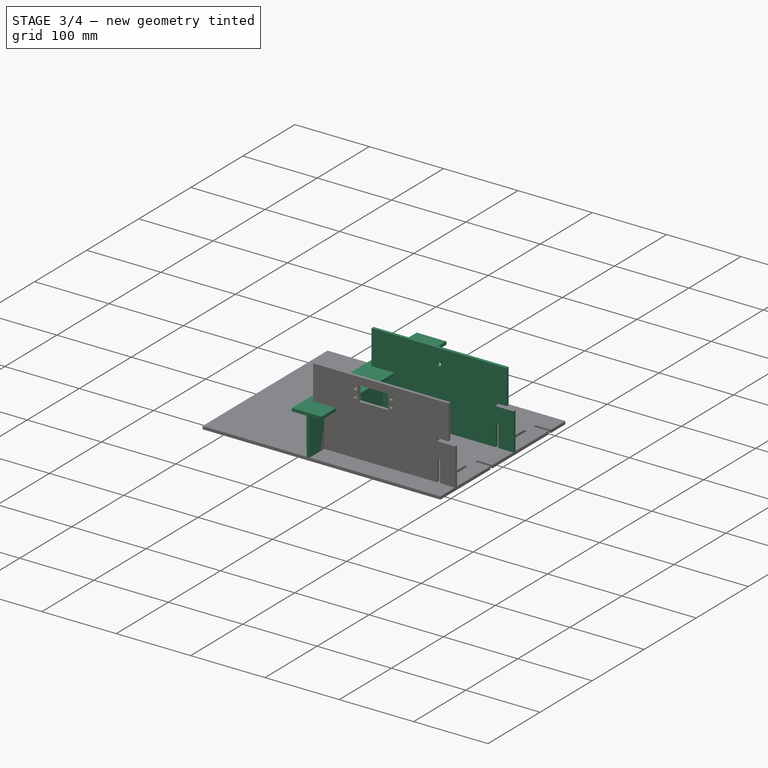
[diagram: stage 3 of 4 — iso view after this stage's code; geometry added in this stage tinted green]
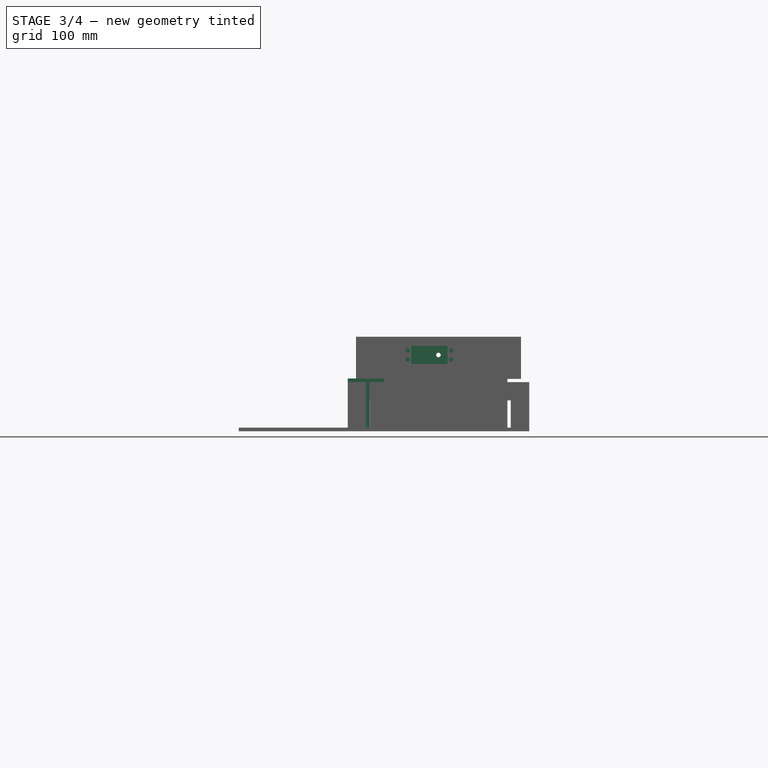
[diagram: stage 3 of 4 — front view after this stage's code; geometry added in this stage tinted green]
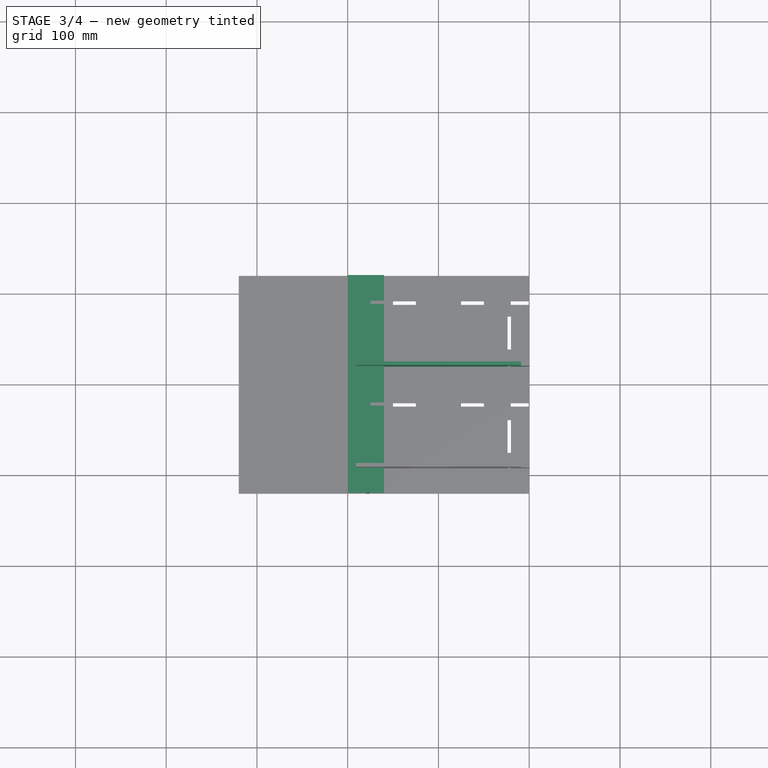
[diagram: stage 3 of 4 — top view after this stage's code; geometry added in this stage tinted green]
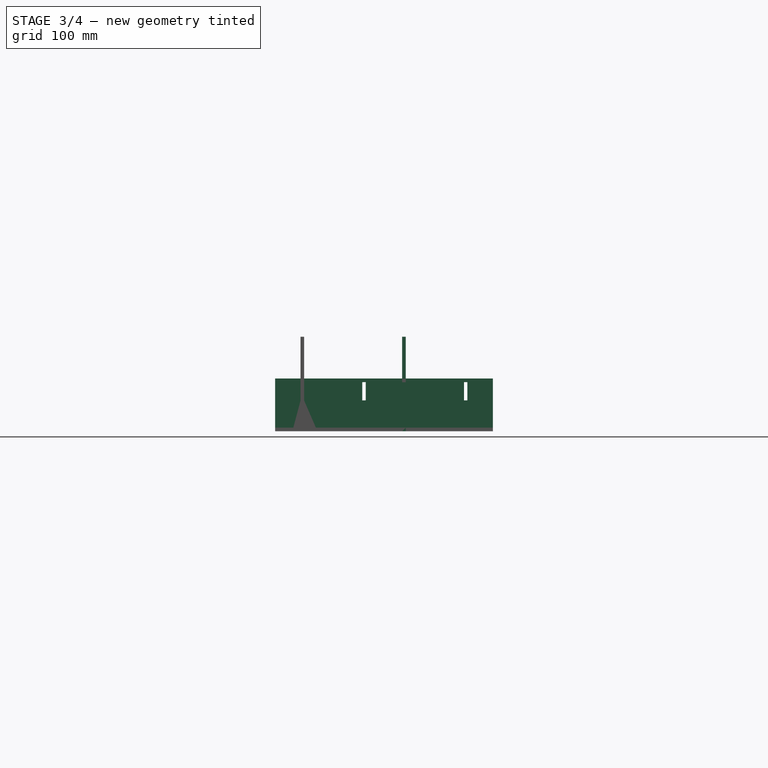
[diagram: stage 3 of 4 — right view after this stage's code; geometry added in this stage tinted green]
FEATURE [Part::Feature] Part__Feature  label="servo"
  Placement = pos=(0,94,0) rot=(1,0,0;1.5708rad)
  shape: bbox 55.6 x 41.2 x 19.95 mm, 40 faces, 0 solids (baked)
FEATURE [Part::Mirroring] Part__Mirroring001  label="servo (Mirror #2)"
  Base = (0,0,0)
  Normal = (0,1,0)
  Source = -> Part__Feature
FEATURE [Sketcher::SketchObject] Sketch003  label="virt_stopper"
  Placement = pos=(76,0,0) rot=(0.57735,0.57735,0.57735;2.0944rad)
  sketch-geometry (44):
    g0: LineSegment StartX=-120 StartY=-80 StartZ=0 EndX=-120 EndY=-30 EndZ=0
    g1: LineSegment StartX=120 StartY=-30 StartZ=0 EndX=120 EndY=-80 EndZ=0
    g2: LineSegment [constr] StartX=-120 StartY=-80 StartZ=0 EndX=-99.9 EndY=-80 EndZ=0
    g3: LineSegment StartX=-99.9 StartY=-80 StartZ=0 EndX=-99.9 EndY=-84 EndZ=0
    g4: LineSegment StartX=-99.9 StartY=-84 StartZ=0 EndX=-120 EndY=-84 EndZ=0
    g5: LineSegment StartX=-120 StartY=-84 StartZ=0 EndX=-120 EndY=-80 EndZ=0
    g6: LineSegment StartX=-38.9 StartY=-80 StartZ=0 EndX=-38.9 EndY=-84 EndZ=0
    g7: LineSegment StartX=-38.9 StartY=-84 StartZ=0 EndX=-75.1 EndY=-84 EndZ=0
    g8: LineSegment StartX=-75.1 StartY=-84 StartZ=0 EndX=-75.1 EndY=-80 EndZ=0
    g9: LineSegment [constr] StartX=38.9 StartY=-80 StartZ=0 EndX=75.1 EndY=-80 EndZ=0
    g10: LineSegment StartX=75.1 StartY=-80 StartZ=0 EndX=75.1 EndY=-84 EndZ=0
    g11: LineSegment StartX=75.1 StartY=-84 StartZ=0 EndX=38.9 EndY=-84 EndZ=0
    g12: LineSegment StartX=38.9 StartY=-84 StartZ=0 EndX=38.9 EndY=-80 EndZ=0
    g13: LineSegment [constr] StartX=99.9 StartY=-80 StartZ=0 EndX=120 EndY=-80 EndZ=0
    g14: LineSegment StartX=120 StartY=-80 StartZ=0 EndX=120 EndY=-84 EndZ=0
    g15: LineSegment StartX=120 StartY=-84 StartZ=0 EndX=99.9 EndY=-84 EndZ=0
    g16: LineSegment StartX=99.9 StartY=-84 StartZ=0 EndX=99.9 EndY=-80 EndZ=0
    g17: LineSegment StartX=-99.9 StartY=-80 StartZ=0 EndX=-75.1 EndY=-80 EndZ=0
    g18: LineSegment StartX=75.1 StartY=-80 StartZ=0 EndX=99.9 EndY=-80 EndZ=0
    g19: LineSegment [constr] StartX=-99.9 StartY=-84 StartZ=0 EndX=-75.1 EndY=-84 EndZ=0
    g20: LineSegment [constr] StartX=75.1 StartY=-84 StartZ=0 EndX=99.9 EndY=-84 EndZ=0
    g21: LineSegment [constr] StartX=-38.9 StartY=-84 StartZ=0 EndX=38.9 EndY=-84 EndZ=0
    g22: LineSegment [constr] StartX=-75.1 StartY=-80 StartZ=0 EndX=-38.9 EndY=-80 EndZ=0
    g23: LineSegment StartX=-38.9 StartY=-80 StartZ=0 EndX=38.9 EndY=-80 EndZ=0
    g24: LineSegment StartX=120 StartY=-30 StartZ=0 EndX=91.9 EndY=-30 EndZ=0
    g25: LineSegment StartX=91.9 StartY=-30 StartZ=0 EndX=91.9 EndY=-50 EndZ=0
    g26: LineSegment StartX=91.9 StartY=-50 StartZ=0 EndX=88.1 EndY=-50 EndZ=0
    g27: LineSegment StartX=88.1 StartY=-50 StartZ=0 EndX=88.1 EndY=-30 EndZ=0
    g28: LineSegment StartX=88.1 StartY=-30 StartZ=0 EndX=23.9 EndY=-30 EndZ=0
    g29: LineSegment StartX=23.9 StartY=-30 StartZ=0 EndX=23.9 EndY=-50 EndZ=0
    g30: LineSegment StartX=23.9 StartY=-50 StartZ=0 EndX=20.1 EndY=-50 EndZ=0
    g31: LineSegment StartX=20.1 StartY=-50 StartZ=0 EndX=20.1 EndY=-30 EndZ=0
    g32: LineSegment StartX=20.1 StartY=-30 StartZ=0 EndX=-20.1 EndY=-30 EndZ=0
    g33: LineSegment [constr] StartX=23.9 StartY=-50 StartZ=0 EndX=88.1 EndY=-50 EndZ=0
    g34: LineSegment [constr] StartX=20.1 StartY=-30 StartZ=0 EndX=23.9 EndY=-30 EndZ=0
    g35: LineSegment [constr] StartX=88.1 StartY=-30 StartZ=0 EndX=91.9 EndY=-30 EndZ=0
    g36: LineSegment StartX=-120 StartY=-30 StartZ=0 EndX=-91.9 EndY=-30 EndZ=0
    g37: LineSegment StartX=-91.9 StartY=-30 StartZ=0 EndX=-91.9 EndY=-50 EndZ=0
    g38: LineSegment StartX=-91.9 StartY=-50 StartZ=0 EndX=-88.1 EndY=-50 EndZ=0
    g39: LineSegment StartX=-88.1 StartY=-50 StartZ=0 EndX=-88.1 EndY=-30 EndZ=0
    g40: LineSegment StartX=-88.1 StartY=-30 StartZ=0 EndX=-23.9 EndY=-30 EndZ=0
    g41: LineSegment StartX=-23.9 StartY=-30 StartZ=0 EndX=-23.9 EndY=-50 EndZ=0
    g42: LineSegment StartX=-23.9 StartY=-50 StartZ=0 EndX=-20.1 EndY=-50 EndZ=0
    g43: LineSegment StartX=-20.1 StartY=-50 StartZ=0 EndX=-20.1 EndY=-30 EndZ=0
  constraints (115):
    c: Vertical(g0)
    c: Vertical(g1)
    c: Distance(g1) = 50
    c: Coincident(g2,g3)
    c: Coincident(g3,g4)
    c: Coincident(g4,g5)
    c: Coincident(g5,g2)
    c: Horizontal(g2)
    c: Horizontal(g4)
    c: Vertical(g3)
    c: Vertical(g5)
    c: Coincident(g6,g7)
    c: Coincident(g7,g8)
    c: Coincident(g9,g10)
    c: Coincident(g10,g11)
    c: Coincident(g11,g12)
    c: Coincident(g12,g9)
    c: Horizontal(g9)
    c: Horizontal(g11)
    c: Vertical(g10)
    c: Vertical(g12)
    c: Coincident(g13,g14)
    c: Coincident(g14,g15)
    c: Coincident(g15,g16)
    c: Coincident(g16,g13)
    c: Horizontal(g13)
    c: Horizontal(g15)
    c: Vertical(g14)
    c: Vertical(g16)
    c: Coincident(g17,g2)
    c: Horizontal(g17)
    c: Coincident(g18,g9)
    c: Coincident(g18,g13)
    c: Horizontal(g18)
    c: Coincident(g1,g13)
    c: Coincident(g0,g2)
    c: Coincident(g19,g3)
    c: Coincident(g19,g7)
    c: Horizontal(g19)
    c: Coincident(g20,g10)
    c: Coincident(g20,g15)
    c: Horizontal(g20)
    c: Distance(g14) = 4
    c: Symmetric(g15,g3,g-2)
    c: Symmetric(g8,g9,g-2)
    c: Symmetric(g6,g11,g-2)
    c: Distance(g15) = 20.1
    c: Distance(g18) = 24.8
    c: Distance(g11) = 36.2
    c: Coincident(g21,g11)
    c: Coincident(g22,g8)
    c: Coincident(g17,g8)
    c: Coincident(g22,g6)
    c: Coincident(g23,g6)
    c: Coincident(g23,g9)
    c: Coincident(g21,g6)
    c: DistanceX(g-2,g1) = 120
    c: Horizontal(g23)
    c: Symmetric(g0,g1,g-2)
    c: DistanceY(g-1,g1) = -30
    c: Coincident(g1,g24)
    c: Horizontal(g24)
    c: Coincident(g24,g25)
    c: Vertical(g25)
    c: Coincident(g25,g26)
    c: Horizontal(g26)
    c: Coincident(g26,g27)
    c: Vertical(g27)
    c: Coincident(g27,g28)
    c: Horizontal(g28)
    c: Coincident(g28,g29)
    c: Vertical(g29)
    c: Coincident(g29,g30)
    c: Horizontal(g30)
    c: Coincident(g30,g31)
    c: Vertical(g31)
    c: Coincident(g31,g32)
    c: Horizontal(g32)
    c: Distance(g26) = 3.8
    c: Distance(g30) = 3.8
    c: Coincident(g33,g29)
    c: Coincident(g33,g26)
    c: Horizontal(g33)
    c: Coincident(g34,g31)
    c: Coincident(g34,g28)
    c: Horizontal(g34)
    c: Coincident(g35,g24)
    c: Horizontal(g35)
    c: Coincident(g27,g35)
    c: Distance(g24) = 28.1
    c: Distance(g28) = 64.2
    c: Distance(g31) = 20
    c: Coincident(g0,g36)
    c: Horizontal(g36)
    c: Coincident(g36,g37)
    c: Vertical(g37)
    c: Coincident(g37,g38)
    c: Horizontal(g38)
    c: Coincident(g38,g39)
    c: Vertical(g39)
    c: Coincident(g39,g40)
    c: Horizontal(g40)
    c: Coincident(g40,g41)
    c: Vertical(g41)
    c: Coincident(g41,g42)
    c: Horizontal(g42)
    c: Coincident(g42,g43)
    c: Vertical(g43)
    c: Coincident(g32,g43)
    c: Symmetric(g30,g42,g-2)
    c: Distance(g42) = 3.8
    c: Symmetric(g39,g27,g-2)
    c: Symmetric(g37,g25,g-2)
    c: Vertical(g6)
    c: Vertical(g8)
FEATURE [Sketcher::SketchObject] Sketch004  label="jikuuke"
  Placement = pos=(0,20,0) rot=(1,0,0;1.5708rad)
  sketch-geometry (43):
    g0: Circle CenterX=0 CenterY=0 CenterZ=0 NormalX=0 NormalY=0 NormalZ=1 Radius=2.5
    g1: LineSegment StartX=100 StartY=-30.1 StartZ=0 EndX=100 EndY=-80 EndZ=0
    g2: LineSegment StartX=-100 StartY=-80 StartZ=0 EndX=-100 EndY=-30.1 EndZ=0
    g3: LineSegment StartX=75.9 StartY=-50 StartZ=0 EndX=79.7 EndY=-50 EndZ=0
    g4: LineSegment StartX=-79.7 StartY=-50 StartZ=0 EndX=-75.9 EndY=-50 EndZ=0
    g5: LineSegment StartX=-100 StartY=-30.1 StartZ=0 EndX=-75.9 EndY=-30.1 EndZ=0
    g6: LineSegment StartX=-90.9 StartY=20 StartZ=0 EndX=90.9 EndY=20 EndZ=0
    g7: LineSegment StartX=90.9 StartY=20 StartZ=0 EndX=90.9 EndY=-26.3 EndZ=0
    g8: LineSegment StartX=75.9 StartY=-26.3 StartZ=0 EndX=90.9 EndY=-26.3 EndZ=0
    g9: LineSegment StartX=75.9 StartY=-26.3 StartZ=0 EndX=75.9 EndY=-30.1 EndZ=0
    g10: LineSegment StartX=75.9 StartY=-30.1 StartZ=0 EndX=100 EndY=-30.1 EndZ=0
    g11: LineSegment StartX=75.9 StartY=-50 StartZ=0 EndX=75.9 EndY=-80 EndZ=0
    g12: LineSegment StartX=-79.7 StartY=-50 StartZ=0 EndX=-79.7 EndY=-80 EndZ=0
    g13: LineSegment StartX=79.7 StartY=-50 StartZ=0 EndX=79.7 EndY=-80 EndZ=0
    g14: LineSegment [constr] StartX=75.9 StartY=-80 StartZ=0 EndX=100 EndY=-80 EndZ=0
    g15: LineSegment StartX=-75.9 StartY=-50 StartZ=0 EndX=-75.9 EndY=-80 EndZ=0
    g16: LineSegment [constr] StartX=-100 StartY=-80 StartZ=0 EndX=-75.9 EndY=-80 EndZ=0
    g17: LineSegment StartX=-90.9 StartY=-26.3 StartZ=0 EndX=-75.9 EndY=-26.3 EndZ=0
    g18: LineSegment StartX=-75.9 StartY=-26.3 StartZ=0 EndX=-75.9 EndY=-30.1 EndZ=0
    g19: LineSegment StartX=-90.9 StartY=20 StartZ=0 EndX=-90.9 EndY=-26.3 EndZ=0
    g20: LineSegment [constr] StartX=-75.9 StartY=-80 StartZ=0 EndX=-79.7 EndY=-80 EndZ=0
    g21: LineSegment [constr] StartX=79.7 StartY=-80 StartZ=0 EndX=75.9 EndY=-80 EndZ=0
    g22: LineSegment StartX=79.7 StartY=-80 StartZ=0 EndX=79.7 EndY=-84 EndZ=0
    g23: LineSegment StartX=79.7 StartY=-84 StartZ=0 EndX=100 EndY=-84 EndZ=0
    g24: LineSegment StartX=100 StartY=-84 StartZ=0 EndX=100 EndY=-80 EndZ=0
    g25: LineSegment StartX=-79.7 StartY=-80 StartZ=0 EndX=-79.7 EndY=-84 EndZ=0
    g26: LineSegment StartX=-79.7 StartY=-84 StartZ=0 EndX=-100 EndY=-84 EndZ=0
    g27: LineSegment StartX=-100 StartY=-84 StartZ=0 EndX=-100 EndY=-80 EndZ=0
    g28: LineSegment [constr] StartX=-50.1 StartY=-80 StartZ=0 EndX=-24.9 EndY=-80 EndZ=0
    g29: LineSegment StartX=-24.9 StartY=-80 StartZ=0 EndX=-24.9 EndY=-84 EndZ=0
    g30: LineSegment StartX=-24.9 StartY=-84 StartZ=0 EndX=-50.1 EndY=-84 EndZ=0
    g31: LineSegment StartX=-50.1 StartY=-84 StartZ=0 EndX=-50.1 EndY=-80 EndZ=0
    g32: LineSegment [constr] StartX=24.9 StartY=-80 StartZ=0 EndX=50.1 EndY=-80 EndZ=0
    g33: LineSegment StartX=50.1 StartY=-80 StartZ=0 EndX=50.1 EndY=-84 EndZ=0
    g34: LineSegment StartX=50.1 StartY=-84 StartZ=0 EndX=24.9 EndY=-84 EndZ=0
    g35: LineSegment StartX=24.9 StartY=-84 StartZ=0 EndX=24.9 EndY=-80 EndZ=0
    g36: LineSegment StartX=-75.9 StartY=-80 StartZ=0 EndX=-50.1 EndY=-80 EndZ=0
    g37: LineSegment StartX=-24.9 StartY=-80 StartZ=0 EndX=24.9 EndY=-80 EndZ=0
    g38: LineSegment StartX=50.1 StartY=-80 StartZ=0 EndX=75.9 EndY=-80 EndZ=0
    g39: LineSegment [constr] StartX=-24.9 StartY=-84 StartZ=0 EndX=24.9 EndY=-84 EndZ=0
    g40: LineSegment [constr] StartX=50.1 StartY=-84 StartZ=0 EndX=79.7 EndY=-84 EndZ=0
    g41: LineSegment [constr] StartX=-79.7 StartY=-84 StartZ=0 EndX=-50.1 EndY=-84 EndZ=0
    g42: LineSegment [constr] StartX=75.9 StartY=-30.1 StartZ=0 EndX=75.9 EndY=-50 EndZ=0
  constraints (112):
    c: Coincident(g0,g-1)
    c: Radius(g0) = 2.5
    c: Vertical(g1)
    c: Vertical(g2)
    c: Horizontal(g3)
    c: Distance(g3) = 3.8
    c: Horizontal(g4)
    c: Coincident(g5,g2)
    c: Horizontal(g5)
    c: DistanceY(g-1,g6) = 20
    c: Horizontal(g6)
    c: Coincident(g7,g6)
    c: Vertical(g7)
    c: Horizontal(g8)
    c: Coincident(g8,g7)
    c: Coincident(g9,g8)
    c: Coincident(g10,g9)
    c: Horizontal(g10)
    c: Vertical(g9)
    c: Distance(g9) = 3.8
    c: Distance(g8) = 15
    c: Distance(g1,g6) = 100
    c: Vertical(g11)
    c: Vertical(g12)
    c: Coincident(g13,g3)
    c: Vertical(g13)
    c: Coincident(g14,g1)
    c: Horizontal(g14)
    c: Coincident(g15,g4)
    c: Vertical(g15)
    c: Coincident(g16,g2)
    c: Coincident(g16,g15)
    c: Horizontal(g16)
    c: Coincident(g10,g1)
    c: Coincident(g3,g11)
    c: Coincident(g17,g18)
    c: Horizontal(g17)
    c: Vertical(g18)
    c: Coincident(g19,g6)
    c: Coincident(g19,g17)
    c: Vertical(g19)
    c: Coincident(g5,g18)
    c: Coincident(g12,g4)
    c: Coincident(g20,g15)
    c: Coincident(g20,g12)
    c: Horizontal(g20)
    c: Horizontal(g21)
    c: Coincident(g21,g13)
    c: Coincident(g11,g21)
    c: Coincident(g14,g11)
    c: Symmetric(g6,g6,g-2)
    c: Symmetric(g17,g8,g-2)
    c: Symmetric(g2,g1,g-2)
    c: Symmetric(g4,g3,g-2)
    c: Symmetric(g12,g13,g-2)
    c: Vertical(g22)
    c: Coincident(g13,g22)
    c: Coincident(g23,g22)
    c: Horizontal(g23)
    c: Coincident(g24,g23)
    c: Coincident(g24,g1)
    c: Vertical(g24)
    c: Distance(g24) = 4
    c: Coincident(g25,g26)
    c: Coincident(g26,g27)
    c: Horizontal(g26)
    c: Vertical(g25)
    c: Vertical(g27)
    c: Coincident(g27,g2)
    c: Coincident(g25,g12)
    c: Symmetric(g22,g25,g-2)
    c: Coincident(g28,g29)
    c: Coincident(g29,g30)
    c: Coincident(g30,g31)
    c: Coincident(g31,g28)
    c: Horizontal(g28)
    c: Horizontal(g30)
    c: Vertical(g29)
    c: Vertical(g31)
    c: Coincident(g32,g33)
    c: Coincident(g33,g34)
    c: Coincident(g34,g35)
    c: Coincident(g35,g32)
    c: Horizontal(g32)
    c: Horizontal(g34)
    c: Vertical(g33)
    c: Vertical(g35)
    c: Coincident(g36,g28)
    c: Horizontal(g36)
    c: Coincident(g37,g28)
    c: Coincident(g37,g32)
    c: Coincident(g38,g32)
    c: Coincident(g38,g11)
    c: Horizontal(g38)
    c: Symmetric(g28,g32,g-2)
    c: Symmetric(g33,g30,g-2)
    c: Distance(g34) = 25.2
    c: Coincident(g15,g36)
    c: Coincident(g39,g29)
    c: Coincident(g39,g34)
    c: Coincident(g40,g33)
    c: Coincident(g40,g22)
    c: Horizontal(g40)
    c: DistanceX(g-2,g6) = 90.9
    c: DistanceX(g-2,g34) = 24.9
    c: Distance(g23) = 20.3
    c: Distance(g11) = 30
    c: Coincident(g41,g25)
    c: Coincident(g41,g30)
    c: Coincident(g42,g9)
    c: Coincident(g42,g3)
    c: Vertical(g42)
FEATURE [Part::Extrusion] Extrude004
  Base = -> Sketch004
  Dir = (0,4,0)
  Solid = true
FEATURE [Part::Extrusion] Extrude005
  Base = -> Sketch003
  Dir = (4,0,0)
  Solid = true
FEATURE [Part::Mirroring] Part__Mirroring004  label="Extrude005 (Mirror #5)"
  Base = (0,0,0)
  Normal = (1,0,0)
  Source = -> Extrude005
FEATURE [Part::Mirroring] Part__Mirroring005  label="Extrude006 (Mirror #6)"
  Base = (-3.8147e-06,0,-28)
  Normal = (1,0,-3.57628e-07)
  Source = -> Extrude006
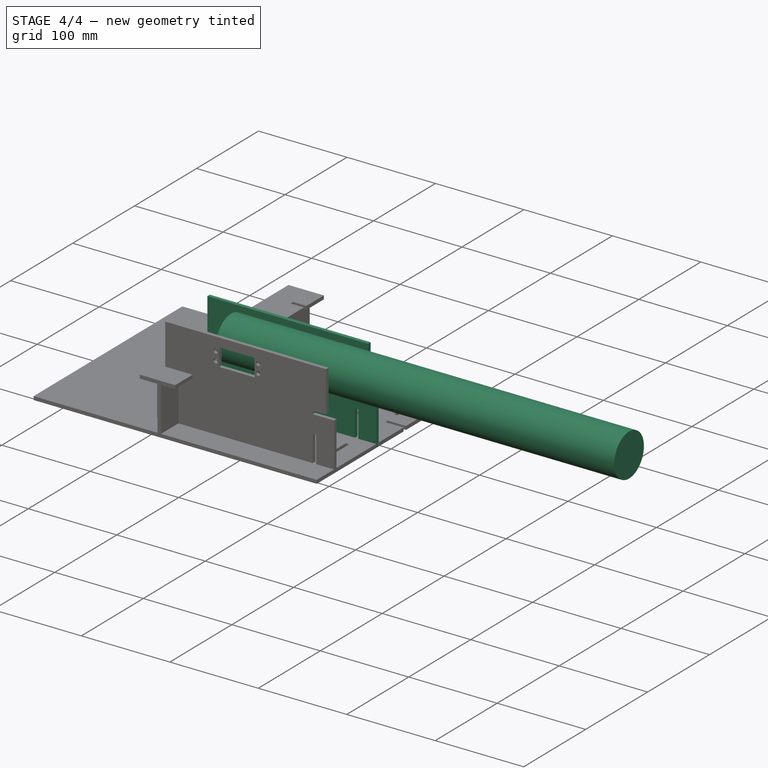
[diagram: stage 4 of 4 — iso view after this stage's code; geometry added in this stage tinted green]
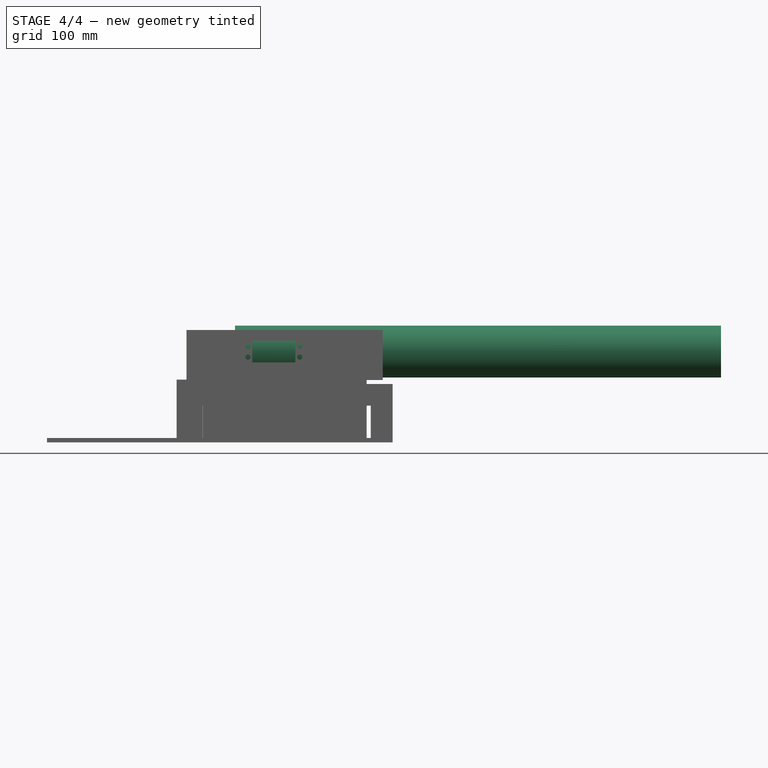
[diagram: stage 4 of 4 — front view after this stage's code; geometry added in this stage tinted green]
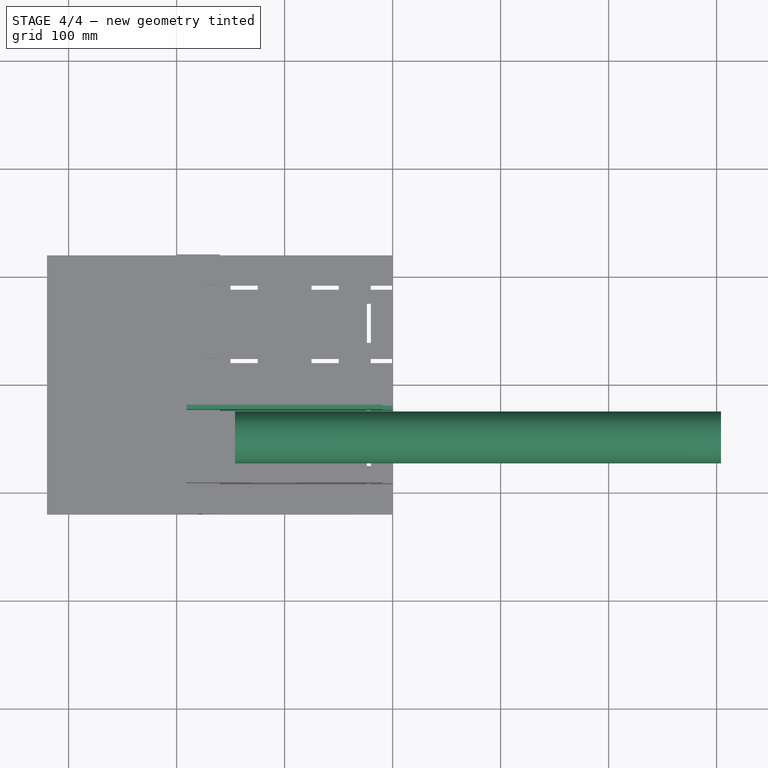
[diagram: stage 4 of 4 — top view after this stage's code; geometry added in this stage tinted green]
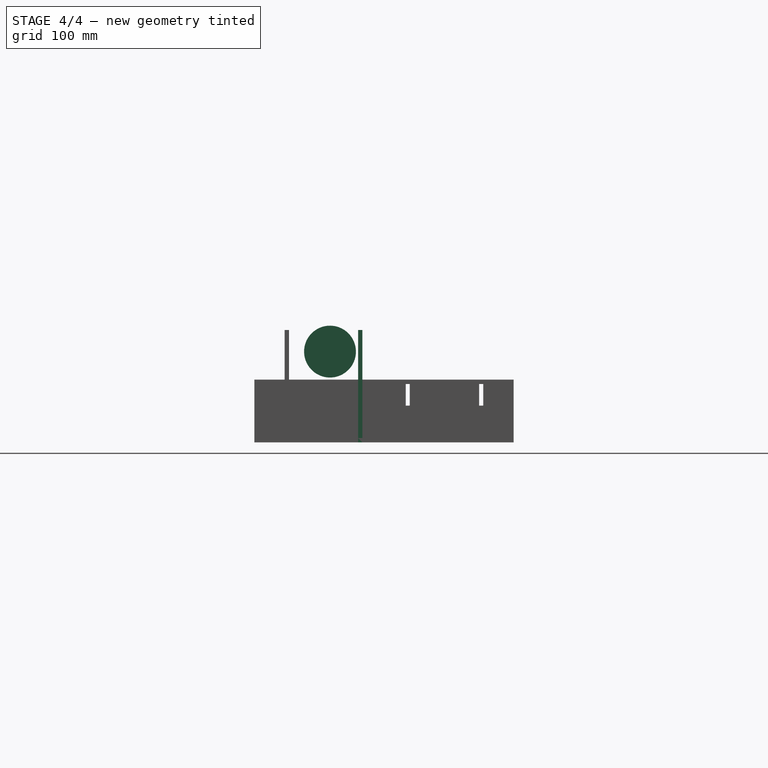
[diagram: stage 4 of 4 — right view after this stage's code; geometry added in this stage tinted green]
FEATURE [Part::Cylinder] Cylinder
  Angle = 360
  Height = 450
  Placement = pos=(-46,50,0) rot=(0,1,0;1.5708rad)
  Radius = 24
FEATURE [Sketcher::SketchObject] Sketch002  label="bottom"
  Placement = pos=(0,0,-80) rot=(0,0,1;0rad)
  sketch-geometry (81):
    g0: LineSegment StartX=-220 StartY=120 StartZ=0 EndX=100 EndY=120 EndZ=0
    g1: LineSegment StartX=-100 StartY=91.9 StartZ=0 EndX=-79.7 EndY=91.9 EndZ=0
    g2: LineSegment StartX=-79.7 StartY=91.9 StartZ=0 EndX=-79.7 EndY=88.1 EndZ=0
    g3: LineSegment StartX=-79.7 StartY=88.1 StartZ=0 EndX=-100 EndY=88.1 EndZ=0
    g4: LineSegment StartX=-100 StartY=88.1 StartZ=0 EndX=-100 EndY=91.9 EndZ=0
    g5: LineSegment StartX=-50.1 StartY=91.9 StartZ=0 EndX=-24.9 EndY=91.9 EndZ=0
    g6: LineSegment StartX=-24.9 StartY=91.9 StartZ=0 EndX=-24.9 EndY=88.1 EndZ=0
    g7: LineSegment StartX=-24.9 StartY=88.1 StartZ=0 EndX=-50.1 EndY=88.1 EndZ=0
    g8: LineSegment StartX=-50.1 StartY=88.1 StartZ=0 EndX=-50.1 EndY=91.9 EndZ=0
    g9: LineSegment StartX=24.9 StartY=91.9 StartZ=0 EndX=50.1 EndY=91.9 EndZ=0
    g10: LineSegment StartX=50.1 StartY=91.9 StartZ=0 EndX=50.1 EndY=88.1 EndZ=0
    g11: LineSegment StartX=50.1 StartY=88.1 StartZ=0 EndX=24.9 EndY=88.1 EndZ=0
    g12: LineSegment StartX=24.9 StartY=88.1 StartZ=0 EndX=24.9 EndY=91.9 EndZ=0
    g13: LineSegment StartX=79.7 StartY=91.9 StartZ=0 EndX=100 EndY=91.9 EndZ=0
    g14: LineSegment [constr] StartX=100 StartY=91.9 StartZ=0 EndX=100 EndY=88.1 EndZ=0
    g15: LineSegment StartX=100 StartY=88.1 StartZ=0 EndX=79.7 EndY=88.1 EndZ=0
    g16: LineSegment StartX=79.7 StartY=88.1 StartZ=0 EndX=79.7 EndY=91.9 EndZ=0
    g17: LineSegment [constr] StartX=-79.7 StartY=91.9 StartZ=0 EndX=-50.1 EndY=91.9 EndZ=0
    g18: LineSegment [constr] StartX=-24.9 StartY=91.9 StartZ=0 EndX=24.9 EndY=91.9 EndZ=0
    g19: LineSegment [constr] StartX=50.1 StartY=91.9 StartZ=0 EndX=79.7 EndY=91.9 EndZ=0
    g20: LineSegment [constr] StartX=-79.7 StartY=88.1 StartZ=0 EndX=-50.1 EndY=88.1 EndZ=0
    g21: LineSegment [constr] StartX=-24.9 StartY=88.1 StartZ=0 EndX=24.9 EndY=88.1 EndZ=0
    g22: LineSegment [constr] StartX=50.1 StartY=88.1 StartZ=0 EndX=79.7 EndY=88.1 EndZ=0
    g23: LineSegment [constr] StartX=-79.7 StartY=24.0481 StartZ=0 EndX=-50.1 EndY=24.0481 EndZ=0
    g24: LineSegment [constr] StartX=-50.1 StartY=20.2481 StartZ=0 EndX=-79.7 EndY=20.2481 EndZ=0
    g25: LineSegment [constr] StartX=-24.9 StartY=24.0481 StartZ=0 EndX=24.9 EndY=24.0481 EndZ=0
    g26: LineSegment [constr] StartX=24.9 StartY=20.2481 StartZ=0 EndX=-24.9 EndY=20.2481 EndZ=0
    g27: LineSegment [constr] StartX=50.1 StartY=24.0481 StartZ=0 EndX=79.7 EndY=24.0481 EndZ=0
    g28: LineSegment [constr] StartX=79.7 StartY=20.2481 StartZ=0 EndX=50.1 EndY=20.2481 EndZ=0
    g29: LineSegment [constr] StartX=100 StartY=24.0481 StartZ=0 EndX=100 EndY=20.2481 EndZ=0
    g30: LineSegment [constr] StartX=-100 StartY=88.1 StartZ=0 EndX=-100 EndY=24.0481 EndZ=0
    g31: LineSegment [constr] StartX=-50.1 StartY=88.1 StartZ=0 EndX=-50.1 EndY=24.0481 EndZ=0
    g32: LineSegment [constr] StartX=-24.9 StartY=88.1 StartZ=0 EndX=-24.9 EndY=24.0481 EndZ=0
    g33: LineSegment [constr] StartX=24.9 StartY=88.1 StartZ=0 EndX=24.9 EndY=24.0481 EndZ=0
    g34: LineSegment [constr] StartX=50.1 StartY=88.1 StartZ=0 EndX=50.1 EndY=24.0481 EndZ=0
    g35: LineSegment StartX=79.9 StartY=38.9 StartZ=0 EndX=76.1 EndY=38.9 EndZ=0
    g36: LineSegment StartX=76.1 StartY=38.9 StartZ=0 EndX=76.1 EndY=75.1 EndZ=0
    g37: LineSegment StartX=76.1 StartY=75.1 StartZ=0 EndX=79.9 EndY=75.1 EndZ=0
    g38: LineSegment StartX=79.9 StartY=75.1 StartZ=0 EndX=79.9 EndY=38.9 EndZ=0
    g39: LineSegment [constr] StartX=79.9 StartY=99.9 StartZ=0 EndX=79.9 EndY=75.1 EndZ=0
    g40: LineSegment StartX=100 StartY=120 StartZ=0 EndX=100 EndY=91.9 EndZ=0
    g41: LineSegment StartX=100 StartY=88.1 StartZ=0 EndX=100 EndY=24.0481 EndZ=0
    g42: LineSegment StartX=100 StartY=20.2481 StartZ=0 EndX=100 EndY=0 EndZ=0
    g43: LineSegment StartX=-79.9 StartY=38.9 StartZ=0 EndX=-76.1 EndY=38.9 EndZ=0
    g44: LineSegment StartX=-76.1 StartY=38.9 StartZ=0 EndX=-76.1 EndY=75.1 EndZ=0
    g45: LineSegment StartX=-76.1 StartY=75.1 StartZ=0 EndX=-79.9 EndY=75.1 EndZ=0
    g46: LineSegment StartX=-79.9 StartY=75.1 StartZ=0 EndX=-79.9 EndY=38.9 EndZ=0
    g47: LineSegment [constr] StartX=-76.1 StartY=120 StartZ=0 EndX=79.9 EndY=120 EndZ=0
    g48: LineSegment [constr] StartX=79.9 StartY=99.9 StartZ=0 EndX=-76.1 EndY=99.9 EndZ=0
    g49: LineSegment [constr] StartX=-76.1 StartY=75.1 StartZ=0 EndX=79.9 EndY=75.1 EndZ=0
    g50: LineSegment StartX=79.9 StartY=75.1 StartZ=0 EndX=79.9 EndY=38.9 EndZ=0
    g51: LineSegment [constr] StartX=79.9 StartY=38.9 StartZ=0 EndX=-76.1 EndY=38.9 EndZ=0
    g52: LineSegment StartX=-76.1 StartY=38.9 StartZ=0 EndX=-76.1 EndY=75.1 EndZ=0
    g53: LineSegment StartX=100 StartY=0 StartZ=0 EndX=-220 EndY=0 EndZ=0
    g54: LineSegment [constr] StartX=-76.1 StartY=99.9 StartZ=0 EndX=-76.1 EndY=75.1 EndZ=0
    g55: LineSegment StartX=-220 StartY=120 StartZ=0 EndX=-220 EndY=0 EndZ=0
    g56: LineSegment StartX=100 StartY=24.0481 StartZ=0 EndX=79.7 EndY=24.0481 EndZ=0
    g57: LineSegment StartX=79.7 StartY=24.0481 StartZ=0 EndX=79.7 EndY=20.2481 EndZ=0
    g58: LineSegment StartX=79.7 StartY=20.2481 StartZ=0 EndX=100 EndY=20.2481 EndZ=0
    g59: LineSegment StartX=79.9 StartY=120 StartZ=0 EndX=76.1 EndY=120 EndZ=0
    g60: LineSegment StartX=76.1 StartY=120 StartZ=0 EndX=76.1 EndY=99.9 EndZ=0
    g61: LineSegment StartX=76.1 StartY=99.9 StartZ=0 EndX=79.9 EndY=99.9 EndZ=0
    g62: LineSegment StartX=79.9 StartY=99.9 StartZ=0 EndX=79.9 EndY=120 EndZ=0
    g63: LineSegment StartX=24.9 StartY=24.0481 StartZ=0 EndX=50.1 EndY=24.0481 EndZ=0
    g64: LineSegment StartX=50.1 StartY=24.0481 StartZ=0 EndX=50.1 EndY=20.2481 EndZ=0
    g65: LineSegment StartX=50.1 StartY=20.2481 StartZ=0 EndX=24.9 EndY=20.2481 EndZ=0
    g66: LineSegment StartX=24.9 StartY=20.2481 StartZ=0 EndX=24.9 EndY=24.0481 EndZ=0
    g67: LineSegment StartX=-50.1 StartY=24.0481 StartZ=0 EndX=-24.9 EndY=24.0481 EndZ=0
    g68: LineSegment StartX=-24.9 StartY=24.0481 StartZ=0 EndX=-24.9 EndY=20.2481 EndZ=0
    g69: LineSegment StartX=-24.9 StartY=20.2481 StartZ=0 EndX=-50.1 EndY=20.2481 EndZ=0
    g70: LineSegment StartX=-50.1 StartY=20.2481 StartZ=0 EndX=-50.1 EndY=24.0481 EndZ=0
    g71: LineSegment StartX=-100 StartY=24.0481 StartZ=0 EndX=-79.7 EndY=24.0481 EndZ=0
    g72: LineSegment StartX=-79.7 StartY=24.0481 StartZ=0 EndX=-79.7 EndY=20.2481 EndZ=0
    g73: LineSegment StartX=-79.7 StartY=20.2481 StartZ=0 EndX=-100 EndY=20.2481 EndZ=0
    g74: LineSegment StartX=-100 StartY=20.2481 StartZ=0 EndX=-100 EndY=24.0481 EndZ=0
    g75: LineSegment StartX=-76.1 StartY=120 StartZ=0 EndX=-79.9 EndY=120 EndZ=0
    g76: LineSegment StartX=-79.9 StartY=120 StartZ=0 EndX=-79.9 EndY=99.9 EndZ=0
    g77: LineSegment StartX=-79.9 StartY=99.9 StartZ=0 EndX=-76.1 EndY=99.9 EndZ=0
    g78: LineSegment StartX=-76.1 StartY=99.9 StartZ=0 EndX=-76.1 EndY=120 EndZ=0
    g79: LineSegment [constr] StartX=-79.9 StartY=99.9 StartZ=0 EndX=-79.9 EndY=75.1 EndZ=0
    g80: LineSegment [constr] StartX=76.1 StartY=99.9 StartZ=0 EndX=76.1 EndY=75.1 EndZ=0
  constraints (213):
    c: Horizontal(g0)
    c: Distance(g0) = 320
    c: DistanceX(g-2,g0) = 100
    c: Coincident(g1,g2)
    c: Coincident(g2,g3)
    c: Coincident(g3,g4)
    c: Coincident(g4,g1)
    c: Horizontal(g1)
    c: Horizontal(g3)
    c: Vertical(g2)
    c: Vertical(g4)
    c: Coincident(g5,g6)
    c: Coincident(g6,g7)
    c: Coincident(g7,g8)
    c: Coincident(g8,g5)
    c: Horizontal(g5)
    c: Horizontal(g7)
    c: Vertical(g6)
    c: Vertical(g8)
    c: Coincident(g9,g10)
    c: Coincident(g10,g11)
    c: Coincident(g11,g12)
    c: Coincident(g12,g9)
    c: Horizontal(g9)
    c: Horizontal(g11)
    c: Vertical(g10)
    c: Vertical(g12)
    c: Coincident(g13,g14)
    c: Coincident(g14,g15)
    c: Coincident(g15,g16)
    c: Coincident(g16,g13)
    c: Horizontal(g13)
    c: Horizontal(g15)
    c: Vertical(g14)
    c: Vertical(g16)
    c: Coincident(g17,g1)
    c: Coincident(g17,g5)
    c: Horizontal(g17)
    c: Coincident(g18,g5)
    c: Coincident(g18,g9)
    c: Horizontal(g18)
    c: Coincident(g19,g13)
    c: Horizontal(g19)
    c: Coincident(g19,g9)
    c: Coincident(g20,g2)
    c: Coincident(g20,g7)
    c: Horizontal(g20)
    c: Coincident(g21,g6)
    c: Coincident(g21,g11)
    c: Horizontal(g21)
    c: Coincident(g22,g10)
    c: Coincident(g22,g15)
    c: Horizontal(g22)
    c: Distance(g4) = 3.8
    c: Distance(g15) = 20.3
    c: Distance(g22) = 29.6
    c: Distance(g11) = 25.2
    c: Distance(g18) = 49.8
    c: Distance(g7) = 25.2
    c: Distance(g17) = 29.6
    c: Horizontal(g23)
    c: Horizontal(g24)
    c: Horizontal(g25)
    c: Horizontal(g26)
    c: Horizontal(g27)
    c: Horizontal(g28)
    c: Vertical(g29)
    c: Coincident(g30,g3)
    c: Vertical(g30)
    c: Coincident(g31,g7)
    c: Vertical(g31)
    c: Coincident(g32,g6)
    c: Vertical(g32)
    c: Coincident(g33,g11)
    c: Vertical(g33)
    c: Coincident(g34,g10)
    c: Vertical(g34)
    c: Coincident(g35,g36)
    c: Coincident(g36,g37)
    c: Coincident(g37,g38)
    c: Coincident(g38,g35)
    c: Horizontal(g35)
    c: Horizontal(g37)
    c: Vertical(g36)
    c: Vertical(g38)
    c: Coincident(g39,g37)
    c: Vertical(g39)
    c: Distance(g39) = 24.8
    c: Distance(g36,g35) = 36.2
    c: Coincident(g40,g0)
    c: Coincident(g40,g13)
    c: Vertical(g40)
    c: Coincident(g41,g14)
    c: Vertical(g41)
    c: Coincident(g43,g44)
    c: Coincident(g44,g45)
    c: Coincident(g45,g46)
    c: Coincident(g46,g43)
    c: Horizontal(g43)
    c: Horizontal(g45)
    c: Vertical(g44)
    c: Vertical(g46)
    c: Horizontal(g47)
    c: Horizontal(g48)
    c: Coincident(g49,g50)
    c: Coincident(g50,g51)
    c: Coincident(g51,g52)
    c: Coincident(g52,g49)
    c: Horizontal(g49)
    c: Horizontal(g51)
    c: Vertical(g50)
    c: Vertical(g52)
    c: Coincident(g49,g44)
    c: Coincident(g50,g35)
    c: Coincident(g51,g43)
    c: Horizontal(g53)
    c: Vertical(g54)
    c: Coincident(g44,g54)
    c: Coincident(g55,g0)
    c: PointOnObject(g55,g-1)
    c: Vertical(g55)
    c: Vertical(g42)
    c: PointOnObject(g42,g-1)
    c: Coincident(g49,g37)
    c: Distance(g55) = 120
    c: Coincident(g29,g56)
    c: Horizontal(g56)
    c: Coincident(g56,g57)
    c: Coincident(g57,g28)
    c: Vertical(g57)
    c: Coincident(g57,g58)
    c: Coincident(g58,g29)
    c: Horizontal(g58)
    c: Coincident(g42,g29)
    c: Coincident(g27,g56)
    c: Coincident(g59,g60)
    c: Coincident(g60,g61)
    c: Coincident(g61,g62)
    c: Coincident(g62,g59)
    c: Horizontal(g59)
    c: Horizontal(g61)
    c: Vertical(g60)
    c: Vertical(g62)
    c: Coincident(g59,g47)
    c: Coincident(g63,g64)
    c: Coincident(g64,g65)
    c: Coincident(g65,g66)
    c: Coincident(g66,g63)
    c: Horizontal(g63)
    c: Horizontal(g65)
    c: Vertical(g64)
    c: Vertical(g66)
    c: Coincident(g64,g28)
    c: Coincident(g67,g68)
    c: Coincident(g68,g69)
    c: Coincident(g69,g70)
    c: Coincident(g70,g67)
    c: Horizontal(g67)
    c: Horizontal(g69)
    c: Vertical(g68)
    c: Vertical(g70)
    c: Coincident(g67,g23)
    c: Coincident(g68,g26)
    c: Coincident(g71,g72)
    c: Coincident(g72,g73)
    c: Coincident(g73,g74)
    c: Coincident(g74,g71)
    c: Horizontal(g71)
    c: Horizontal(g73)
    c: Vertical(g72)
    c: Vertical(g74)
    c: Coincident(g71,g30)
    c: Coincident(g72,g24)
    c: Coincident(g75,g76)
    c: Coincident(g76,g77)
    c: Coincident(g77,g78)
    c: Coincident(g78,g75)
    c: Horizontal(g75)
    c: Horizontal(g77)
    c: Vertical(g76)
    c: Vertical(g78)
    c: Coincident(g75,g47)
    c: Coincident(g77,g48)
    c: Coincident(g48,g54)
    c: Distance(g75) = 3.8
    c: Coincident(g71,g23)
    c: Coincident(g31,g23)
    c: Coincident(g24,g69)
    c: Coincident(g67,g25)
    c: Coincident(g32,g25)
    c: Coincident(g63,g25)
    c: Coincident(g25,g33)
    c: Coincident(g26,g65)
    c: Coincident(g34,g27)
    c: Coincident(g63,g27)
    c: Coincident(g41,g29)
    c: Coincident(g39,g48)
    c: Coincident(g39,g61)
    c: Distance(g59) = 3.8
    c: Distance(g74) = 3.8
    c: DistanceY(g-1,g14) = 88.1
    c: DistanceY(g-1,g59) = 120
    c: Distance(g60) = 20.1
    c: Coincident(g53,g55)
    c: Distance(g59,g10) = 26
    c: Distance(g47,g8) = 26
    c: Distance(g1) = 20.3
    c: Coincident(g79,g76)
    c: Coincident(g79,g45)
    c: Vertical(g79)
    c: Coincident(g80,g60)
    c: Coincident(g80,g36)
    c: Vertical(g80)
FEATURE [Part::Mirroring] Part__Mirroring  label="Cylinder (Mirror #1)"
  Base = (0,0,0)
  Normal = (0,1,0)
  Source = -> Cylinder
FEATURE [Part::Mirroring] Part__Mirroring003  label="Extrude004 (Mirror #4)"
  Base = (0,0,0)
  Normal = (0,1,0)
  Source = -> Extrude004
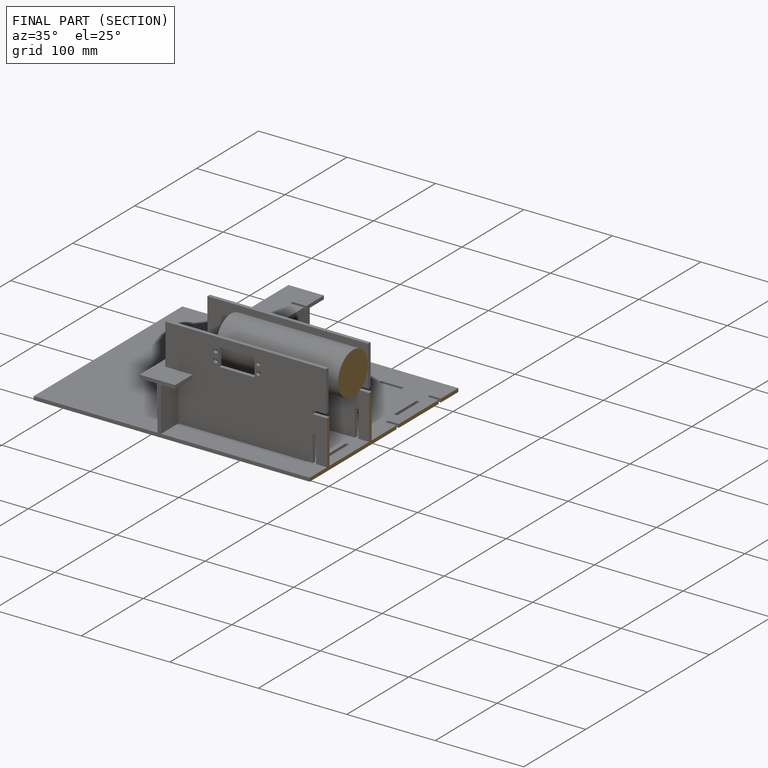
[diagram: finished part — half-section view (interior)]
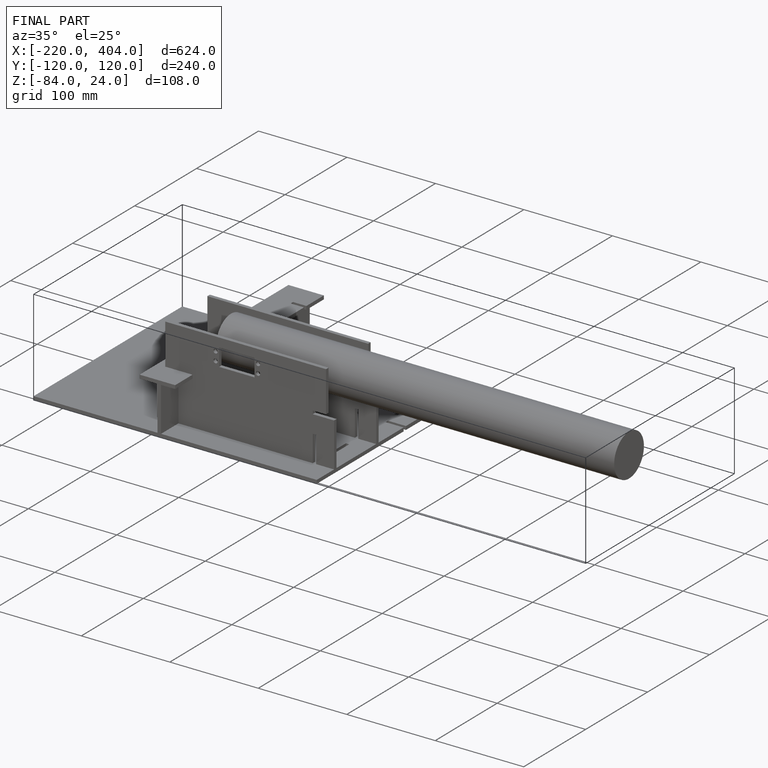
[diagram: finished part — iso view with bounding-box wireframe]
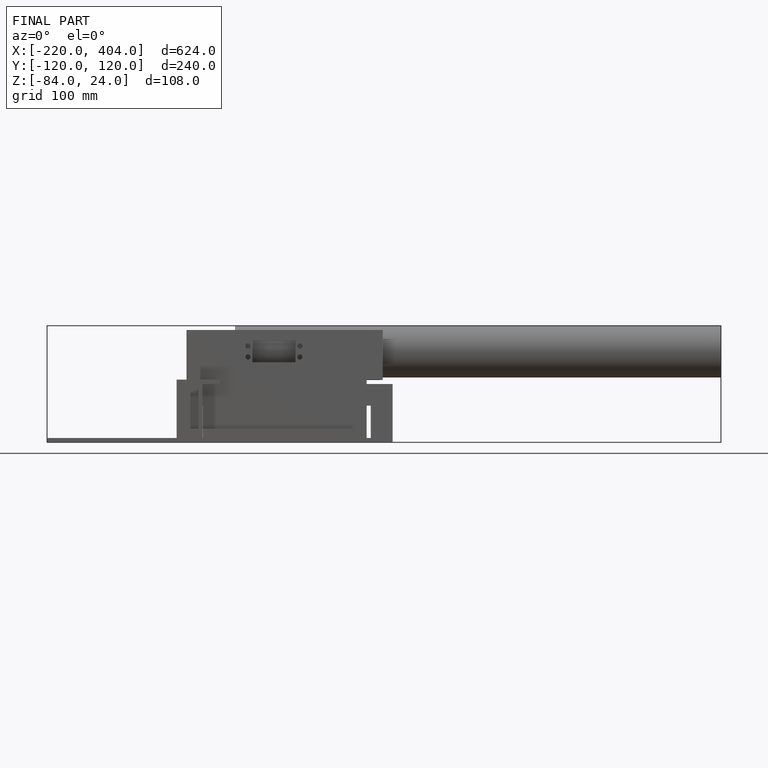
[diagram: finished part — front view with bounding-box wireframe]
